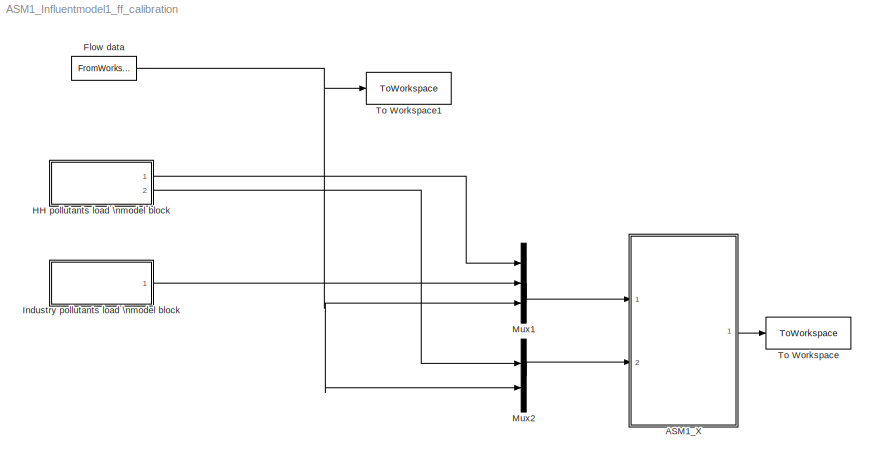
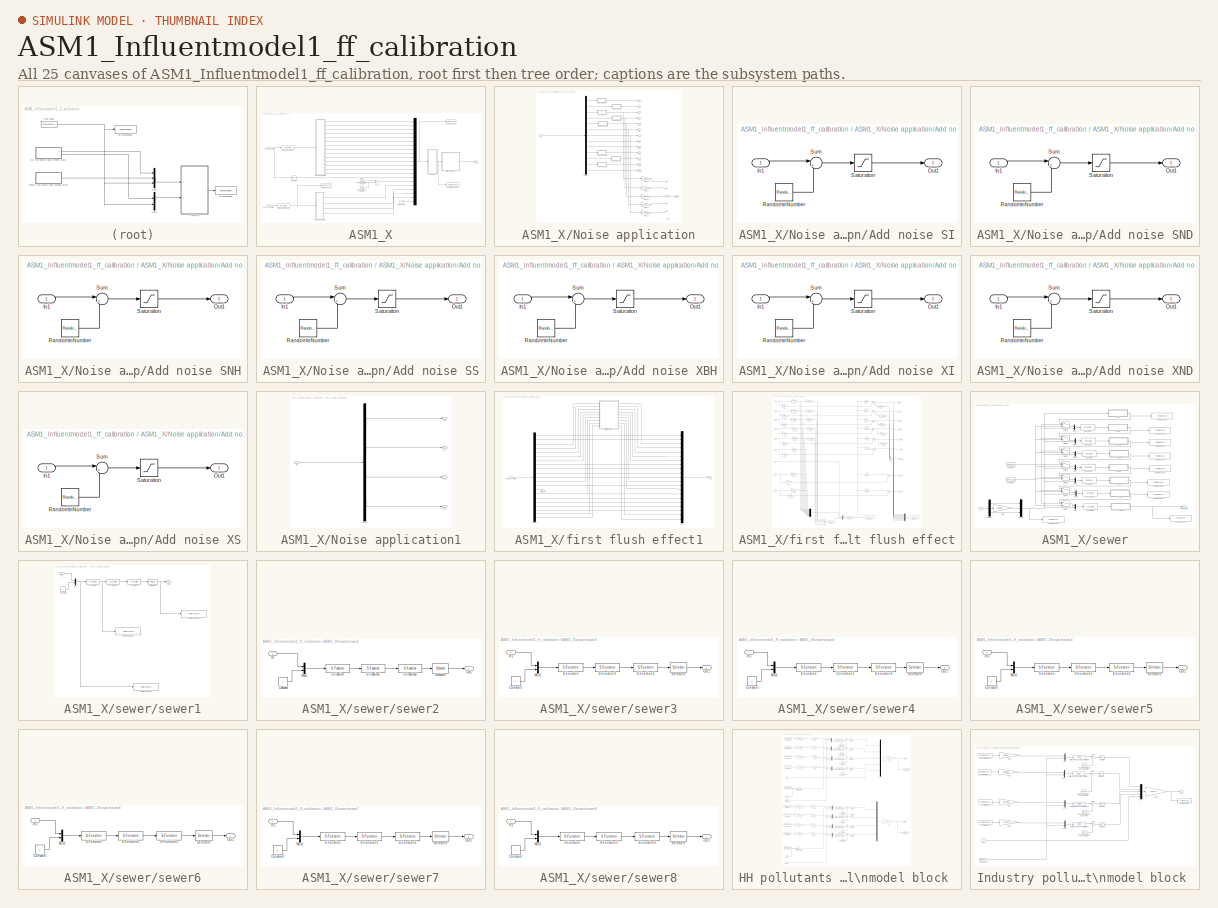
[diagram: thumbnail index - all 25 canvases of the model, root first then tree order]
MODEL ASM1_Influentmodel1_ff_calibration
KIND model
BLOCK [SubSystem] ASM1_X
  FunctionWithSeparateData = off
  MaskHideContents = off
  MinAlgLoopOccurrences = off
  Opaque = off
  Ports = [2, 1]
  PropExecContextOutsideSubsystem = off
  RTWSystemCode = Auto
  RequestExecContextInheritance = off
  SID = 1
BLOCK [S-Function] ASM1_X/ASM1_fractionator
  EnableBusSupport = off
  FunctionName = asm1_fractionation
  Parameters = ASM1_PARS, ASM1_FRACTIONS
  Ports = [1, 1]
  SID = 3
BLOCK [S-Function] ASM1_X/BSM1_fractionator1
  EnableBusSupport = off
  FunctionName = asmX_fractionation
  Ports = [1, 1]
  SID = 447
BLOCK [Mux] ASM1_X/Mux2
  DisplayOption = bar
  Inputs = 21
  Ports = [21, 1]
  SID = 4
BLOCK [SubSystem] ASM1_X/Noise application
  FunctionWithSeparateData = off
  MaskHideContents = off
  MinAlgLoopOccurrences = off
  Opaque = off
  Ports = [1, 14]
  PropExecContextOutsideSubsystem = off
  RTWSystemCode = Auto
  RequestExecContextInheritance = off
  SID = 553
BLOCK [SubSystem] ASM1_X/Noise application/Add noise SI
  FunctionWithSeparateData = off
  MaskHideContents = off
  MinAlgLoopOccurrences = off
  Opaque = off
  Ports = [1, 1]
  PropExecContextOutsideSubsystem = off
  RTWSystemCode = Auto
  RequestExecContextInheritance = off
  SID = 555
BLOCK [Inport] ASM1_X/Noise application/Add noise SI/In1
  IconDisplay = Port number
  SID = 556
BLOCK [Outport] ASM1_X/Noise application/Add noise SI/Out1
  IconDisplay = Port number
  SID = 560
BLOCK [RandomNumber] ASM1_X/Noise application/Add noise SI/Random\nNumber
  SID = 557
  SampleTime = SI_st
  Seed = SI_ns
  Variance = SI_nv*polnoiseswitch
BLOCK [Saturate] ASM1_X/Noise application/Add noise SI/Saturation
  InputPortMap = u0
  LowerLimit = SI_min
  Ports = [1, 1]
  SID = 558
  UpperLimit = SI_max
BLOCK [Sum] ASM1_X/Noise application/Add noise SI/Sum
  IconShape = round
  InputSameDT = off
  Inputs = |++
  OutDataTypeStr = Inherit: Inherit via internal rule
  Ports = [2, 1]
  SID = 559
BLOCK [SubSystem] ASM1_X/Noise application/Add noise SND
  FunctionWithSeparateData = off
  MaskHideContents = off
  MinAlgLoopOccurrences = off
  Opaque = off
  Ports = [1, 1]
  PropExecContextOutsideSubsystem = off
  RTWSystemCode = Auto
  RequestExecContextInheritance = off
  SID = 561
BLOCK [Inport] ASM1_X/Noise application/Add noise SND/In1
  IconDisplay = Port number
  SID = 562
BLOCK [Outport] ASM1_X/Noise application/Add noise SND/Out1
  IconDisplay = Port number
  SID = 566
BLOCK [RandomNumber] ASM1_X/Noise application/Add noise SND/Random\nNumber
  SID = 563
  SampleTime = SND_st
  Seed = SND_ns
  Variance = SND_nv*polnoiseswitch
BLOCK [Saturate] ASM1_X/Noise application/Add noise SND/Saturation
  InputPortMap = u0
  LowerLimit = SND_min
  Ports = [1, 1]
  SID = 564
  UpperLimit = SND_max
BLOCK [Sum] ASM1_X/Noise application/Add noise SND/Sum
  IconShape = round
  InputSameDT = off
  Inputs = |++
  OutDataTypeStr = Inherit: Inherit via internal rule
  Ports = [2, 1]
  SID = 565
BLOCK [SubSystem] ASM1_X/Noise application/Add noise SNH
  FunctionWithSeparateData = off
  MaskHideContents = off
  MinAlgLoopOccurrences = off
  Opaque = off
  Ports = [1, 1]
  PropExecContextOutsideSubsystem = off
  RTWSystemCode = Auto
  RequestExecContextInheritance = off
  SID = 567
BLOCK [Inport] ASM1_X/Noise application/Add noise SNH/In1
  IconDisplay = Port number
  SID = 568
BLOCK [Outport] ASM1_X/Noise application/Add noise SNH/Out1
  IconDisplay = Port number
  SID = 572
BLOCK [RandomNumber] ASM1_X/Noise application/Add noise SNH/Random\nNumber
  SID = 569
  SampleTime = SNH_st
  Seed = SNH_ns
  Variance = SNH_nv*polnoiseswitch
BLOCK [Saturate] ASM1_X/Noise application/Add noise SNH/Saturation
  InputPortMap = u0
  LowerLimit = SNH_min
  Ports = [1, 1]
  SID = 570
  UpperLimit = SNH_max
BLOCK [Sum] ASM1_X/Noise application/Add noise SNH/Sum
  IconShape = round
  InputSameDT = off
  Inputs = |++
  OutDataTypeStr = Inherit: Inherit via internal rule
  Ports = [2, 1]
  SID = 571
BLOCK [SubSystem] ASM1_X/Noise application/Add noise SS
  FunctionWithSeparateData = off
  MaskHideContents = off
  MinAlgLoopOccurrences = off
  Opaque = off
  Ports = [1, 1]
  PropExecContextOutsideSubsystem = off
  RTWSystemCode = Auto
  RequestExecContextInheritance = off
  SID = 573
BLOCK [Inport] ASM1_X/Noise application/Add noise SS/In1
  IconDisplay = Port number
  SID = 574
BLOCK [Outport] ASM1_X/Noise application/Add noise SS/Out1
  IconDisplay = Port number
  SID = 578
BLOCK [RandomNumber] ASM1_X/Noise application/Add noise SS/Random\nNumber
  SID = 575
  SampleTime = SS_st
  Seed = SS_ns
  Variance = SS_nv*polnoiseswitch
BLOCK [Saturate] ASM1_X/Noise application/Add noise SS/Saturation
  InputPortMap = u0
  LowerLimit = SS_min
  Ports = [1, 1]
  SID = 576
  UpperLimit = SS_max
BLOCK [Sum] ASM1_X/Noise application/Add noise SS/Sum
  IconShape = round
  InputSameDT = off
  Inputs = |++
  OutDataTypeStr = Inherit: Inherit via internal rule
  Ports = [2, 1]
  SID = 577
BLOCK [SubSystem] ASM1_X/Noise application/Add noise XBH
  FunctionWithSeparateData = off
  MaskHideContents = off
  MinAlgLoopOccurrences = off
  Opaque = off
  Ports = [1, 1]
  PropExecContextOutsideSubsystem = off
  RTWSystemCode = Auto
  RequestExecContextInheritance = off
  SID = 579
BLOCK [Inport] ASM1_X/Noise application/Add noise XBH/In1
  IconDisplay = Port number
  SID = 580
BLOCK [Outport] ASM1_X/Noise application/Add noise XBH/Out1
  IconDisplay = Port number
  SID = 584
BLOCK [RandomNumber] ASM1_X/Noise application/Add noise XBH/Random\nNumber
  SID = 581
  SampleTime = XBH_st
  Seed = XBH_ns
  Variance = XBH_nv*polnoiseswitch
BLOCK [Saturate] ASM1_X/Noise application/Add noise XBH/Saturation
  InputPortMap = u0
  LowerLimit = XBH_min
  Ports = [1, 1]
  SID = 582
  UpperLimit = XBH_max
BLOCK [Sum] ASM1_X/Noise application/Add noise XBH/Sum
  IconShape = round
  InputSameDT = off
  Inputs = |++
  OutDataTypeStr = Inherit: Inherit via internal rule
  Ports = [2, 1]
  SID = 583
BLOCK [SubSystem] ASM1_X/Noise application/Add noise XI
  FunctionWithSeparateData = off
  MaskHideContents = off
  MinAlgLoopOccurrences = off
  Opaque = off
  Ports = [1, 1]
  PropExecContextOutsideSubsystem = off
  RTWSystemCode = Auto
  RequestExecContextInheritance = off
  SID = 585
BLOCK [Inport] ASM1_X/Noise application/Add noise XI/In1
  IconDisplay = Port number
  SID = 586
BLOCK [Outport] ASM1_X/Noise application/Add noise XI/Out1
  IconDisplay = Port number
  SID = 590
BLOCK [RandomNumber] ASM1_X/Noise application/Add noise XI/Random\nNumber
  SID = 587
  SampleTime = XI_st
  Seed = XI_ns
  Variance = XI_nv*polnoiseswitch
BLOCK [Saturate] ASM1_X/Noise application/Add noise XI/Saturation
  InputPortMap = u0
  LowerLimit = XI_min
  Ports = [1, 1]
  SID = 588
  UpperLimit = XI_max
BLOCK [Sum] ASM1_X/Noise application/Add noise XI/Sum
  IconShape = round
  InputSameDT = off
  Inputs = |++
  OutDataTypeStr = Inherit: Inherit via internal rule
  Ports = [2, 1]
  SID = 589
BLOCK [SubSystem] ASM1_X/Noise application/Add noise XND
  FunctionWithSeparateData = off
  MaskHideContents = off
  MinAlgLoopOccurrences = off
  Opaque = off
  Ports = [1, 1]
  PropExecContextOutsideSubsystem = off
  RTWSystemCode = Auto
  RequestExecContextInheritance = off
  SID = 591
BLOCK [Inport] ASM1_X/Noise application/Add noise XND/In1
  IconDisplay = Port number
  SID = 592
BLOCK [Outport] ASM1_X/Noise application/Add noise XND/Out1
  IconDisplay = Port number
  SID = 596
BLOCK [RandomNumber] ASM1_X/Noise application/Add noise XND/Random\nNumber
  SID = 593
  SampleTime = XND_st
  Seed = XND_ns
  Variance = XND_nv*polnoiseswitch
BLOCK [Saturate] ASM1_X/Noise application/Add noise XND/Saturation
  InputPortMap = u0
  LowerLimit = XND_min
  Ports = [1, 1]
  SID = 594
  UpperLimit = XND_max
BLOCK [Sum] ASM1_X/Noise application/Add noise XND/Sum
  IconShape = round
  InputSameDT = off
  Inputs = |++
  OutDataTypeStr = Inherit: Inherit via internal rule
  Ports = [2, 1]
  SID = 595
BLOCK [SubSystem] ASM1_X/Noise application/Add noise XS
  FunctionWithSeparateData = off
  MaskHideContents = off
  MinAlgLoopOccurrences = off
  Opaque = off
  Ports = [1, 1]
  PropExecContextOutsideSubsystem = off
  RTWSystemCode = Auto
  RequestExecContextInheritance = off
  SID = 597
BLOCK [Inport] ASM1_X/Noise application/Add noise XS/In1
  IconDisplay = Port number
  SID = 598
BLOCK [Outport] ASM1_X/Noise application/Add noise XS/Out1
  IconDisplay = Port number
  SID = 602
BLOCK [RandomNumber] ASM1_X/Noise application/Add noise XS/Random\nNumber
  SID = 599
  SampleTime = XS_st
  Seed = XS_ns
  Variance = XS_nv*polnoiseswitch
BLOCK [Saturate] ASM1_X/Noise application/Add noise XS/Saturation
  InputPortMap = u0
  LowerLimit = XS_min
  Ports = [1, 1]
  SID = 600
  UpperLimit = XS_max
BLOCK [Sum] ASM1_X/Noise application/Add noise XS/Sum
  IconShape = round
  InputSameDT = off
  Inputs = |++
  OutDataTypeStr = Inherit: Inherit via internal rule
  Ports = [2, 1]
  SID = 601
BLOCK [Demux] ASM1_X/Noise application/Demux
  DisplayOption = bar
  Outputs = [1 1 1 1 1 1 1 1 1 1 1 1 1]
  Ports = [1, 13]
  SID = 603
BLOCK [Gain] ASM1_X/Noise application/Gain18
  Gain = X_I2TSS
  OutDataTypeStr = Inherit: Inherit via internal rule
  ParamDataTypeStr = Inherit: Inherit via internal rule
  SID = 604
  SaturateOnIntegerOverflow = off
BLOCK [Gain] ASM1_X/Noise application/Gain19
  Gain = X_S2TSS
  OutDataTypeStr = Inherit: Inherit via internal rule
  ParamDataTypeStr = Inherit: Inherit via internal rule
  SID = 605
  SaturateOnIntegerOverflow = off
BLOCK [Gain] ASM1_X/Noise application/Gain20
  Gain = X_BH2TSS
  OutDataTypeStr = Inherit: Inherit via internal rule
  ParamDataTypeStr = Inherit: Inherit via internal rule
  SID = 606
  SaturateOnIntegerOverflow = off
BLOCK [Gain] ASM1_X/Noise application/Gain21
  Gain = X_BA2TSS
  OutDataTypeStr = Inherit: Inherit via internal rule
  ParamDataTypeStr = Inherit: Inherit via internal rule
  SID = 607
  SaturateOnIntegerOverflow = off
BLOCK [Gain] ASM1_X/Noise application/Gain22
  Gain = X_P2TSS
  OutDataTypeStr = Inherit: Inherit via internal rule
  ParamDataTypeStr = Inherit: Inherit via internal rule
  SID = 608
  SaturateOnIntegerOverflow = off
BLOCK [Inport] ASM1_X/Noise application/In1
  IconDisplay = Port number
  SID = 554
BLOCK [Outport] ASM1_X/Noise application/SALK
  IconDisplay = Port number
  Port = 13
  SID = 622
BLOCK [Outport] ASM1_X/Noise application/SI
  IconDisplay = Port number
  SID = 610
BLOCK [Outport] ASM1_X/Noise application/SND
  IconDisplay = Port number
  Port = 11
  SID = 620
BLOCK [Outport] ASM1_X/Noise application/SNH
  IconDisplay = Port number
  Port = 10
  SID = 619
BLOCK [Outport] ASM1_X/Noise application/SNO
  IconDisplay = Port number
  Port = 9
  SID = 618
BLOCK [Outport] ASM1_X/Noise application/SO
  IconDisplay = Port number
  Port = 8
  SID = 617
BLOCK [Outport] ASM1_X/Noise application/SS
  IconDisplay = Port number
  Port = 2
  SID = 611
BLOCK [Outport] ASM1_X/Noise application/TSS
  IconDisplay = Port number
  Port = 14
  SID = 623
BLOCK [Sum] ASM1_X/Noise application/TSS7
  InputSameDT = off
  Inputs = +++++
  OutDataTypeStr = Inherit: Inherit via internal rule
  Ports = [5, 1]
  SID = 609
  SaturateOnIntegerOverflow = off
BLOCK [Outport] ASM1_X/Noise application/XBA
  IconDisplay = Port number
  Port = 6
  SID = 615
BLOCK [Outport] ASM1_X/Noise application/XBH
  IconDisplay = Port number
  Port = 5
  SID = 614
BLOCK [Outport] ASM1_X/Noise application/XI
  IconDisplay = Port number
  Port = 3
  SID = 612
BLOCK [Outport] ASM1_X/Noise application/XND
  IconDisplay = Port number
  Port = 12
  SID = 621
BLOCK [Outport] ASM1_X/Noise application/XS
  IconDisplay = Port number
  Port = 4
  SID = 613
BLOCK [Outport] ASM1_X/Noise application/XU
  IconDisplay = Port number
  Port = 7
  SID = 616
BLOCK [SubSystem] ASM1_X/Noise application1
  FunctionWithSeparateData = off
  MaskHideContents = off
  MinAlgLoopOccurrences = off
  Opaque = off
  Ports = [1, 4]
  PropExecContextOutsideSubsystem = off
  RTWSystemCode = Auto
  RequestExecContextInheritance = off
  SID = 448
BLOCK [Outport] ASM1_X/Noise application1/C_cj
  IconDisplay = Port number
  Port = 2
  SID = 500
BLOCK [Outport] ASM1_X/Noise application1/C_li
  IconDisplay = Port number
  SID = 499
BLOCK [Outport] ASM1_X/Noise application1/C_sl
  IconDisplay = Port number
  Port = 3
  SID = 501
BLOCK [Outport] ASM1_X/Noise application1/C_sl_i
  IconDisplay = Port number
  Port = 4
  SID = 502
BLOCK [Demux] ASM1_X/Noise application1/Demux
  DisplayOption = bar
  Outputs = [1 1 1 1]
  Ports = [1, 4]
  SID = 498
BLOCK [Inport] ASM1_X/Noise application1/In1
  IconDisplay = Port number
  SID = 449
BLOCK [Sum] ASM1_X/TSS10
  InputSameDT = off
  OutDataTypeStr = Inherit: Inherit via internal rule
  Ports = [2, 1]
  SID = 69
  SaturateOnIntegerOverflow = off
BLOCK [ToWorkspace] ASM1_X/To Workspace
  MaxDataPoints = inf
  Ports = [1]
  SID = 70
  SampleTime = -1
  VariableName = simout_ASM
BLOCK [ToWorkspace] ASM1_X/To Workspace1
  MaxDataPoints = inf
  Ports = [1]
  SID = 541
  SampleTime = -1
  VariableName = simout_ASM2
BLOCK [ToWorkspace] ASM1_X/To Workspace3
  MaxDataPoints = inf
  Ports = [1]
  SID = 701
  SampleTime = -1
  VariableName = simout_ASM_stream
BLOCK [Outport] ASM1_X/_out
  IconDisplay = Port number
  SID = 238
BLOCK [Sin] ASM1_X/daily variation\n module
  Amplitude = TdAmp
  Bias = TdBias
  Frequency = TdFreq
  Phase = TdPhase
  Ports = [0, 1]
  SID = 71
  SampleTime = 0
BLOCK [Constant] ASM1_X/dummy state 
  SID = 512
  Value = 0
BLOCK [SubSystem] ASM1_X/first flush effect1
  FunctionWithSeparateData = off
  MaskHideContents = off
  MinAlgLoopOccurrences = off
  Opaque = off
  Ports = [1, 1]
  PropExecContextOutsideSubsystem = off
  RTWSystemCode = Auto
  RequestExecContextInheritance = off
  SID = 625
BLOCK [Demux] ASM1_X/first flush effect1/Demux
  DisplayOption = bar
  Outputs = [1 1 1 1 1 1 1 1 1 1 1 1 1 1 1 1 1 1 1 1 1]
  Ports = [1, 21]
  SID = 627
BLOCK [Mux] ASM1_X/first flush effect1/Mux2
  DisplayOption = bar
  Inputs = 21
  Ports = [21, 1]
  SID = 628
BLOCK [Terminator] ASM1_X/first flush effect1/Terminator
  SID = 629
BLOCK [Outport] ASM1_X/first flush effect1/_out
  IconDisplay = Port number
  SID = 700
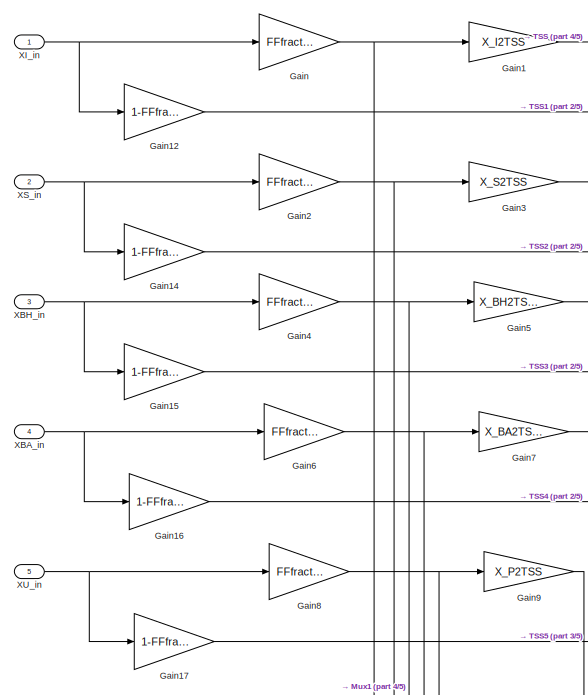
[diagram: ASM1_X/first flush effect1/first flush effect - part 1/5, top left region]
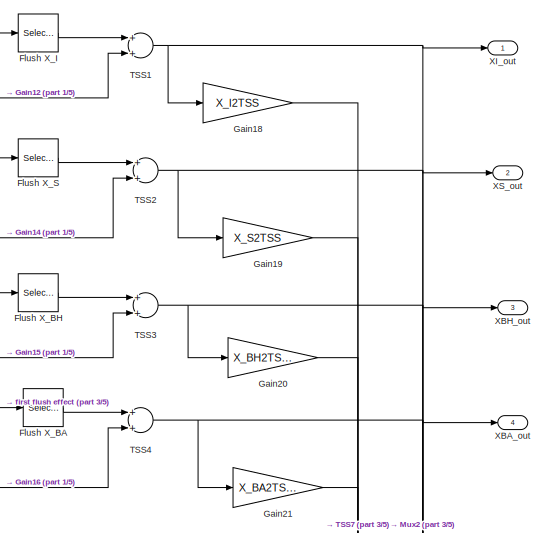
[diagram: ASM1_X/first flush effect1/first flush effect - part 2/5, top right region]
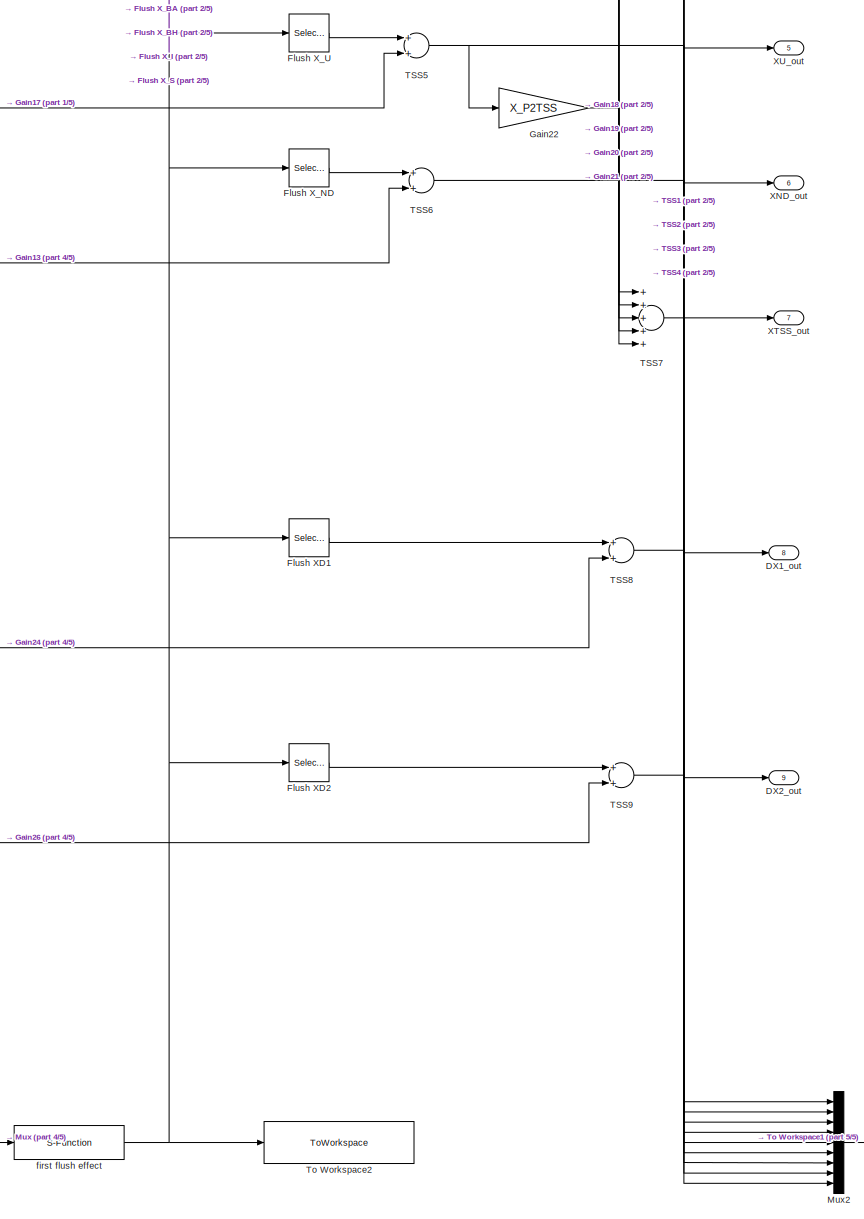
[diagram: ASM1_X/first flush effect1/first flush effect - part 3/5, middle right region]
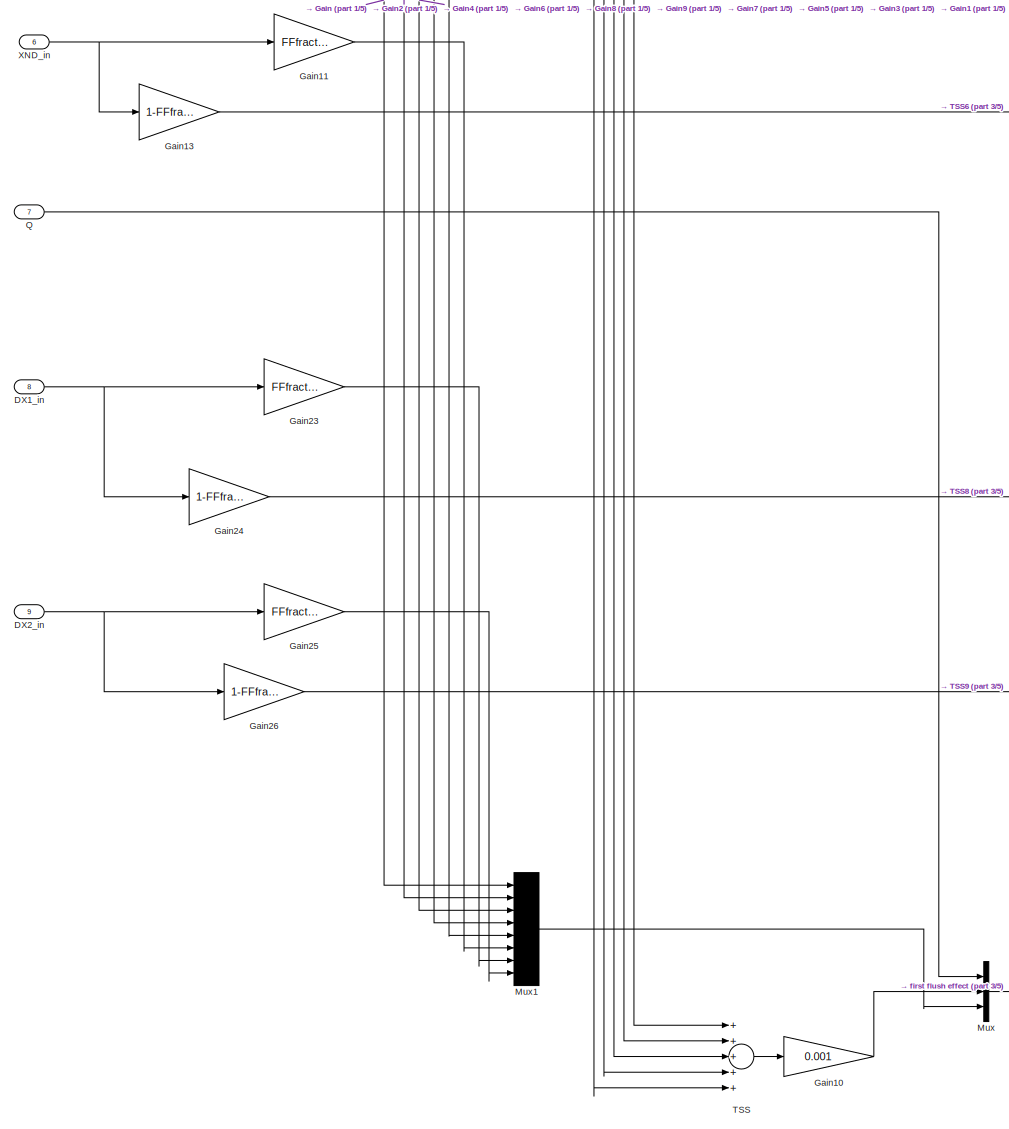
[diagram: ASM1_X/first flush effect1/first flush effect - part 4/5, bottom left region]
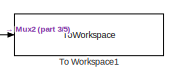
[diagram: ASM1_X/first flush effect1/first flush effect - part 5/5, bottom right region]
BLOCK [SubSystem] ASM1_X/first flush effect1/first flush effect
  FunctionWithSeparateData = off
  MaskHideContents = off
  MinAlgLoopOccurrences = off
  Opaque = off
  Ports = [9, 9]
  PropExecContextOutsideSubsystem = off
  RTWSystemCode = Auto
  RequestExecContextInheritance = off
  SID = 630
BLOCK [Inport] ASM1_X/first flush effect1/first flush effect/DX1_in
  IconDisplay = Port number
  Port = 8
  SID = 638
BLOCK [Outport] ASM1_X/first flush effect1/first flush effect/DX1_out
  IconDisplay = Port number
  Port = 8
  SID = 698
BLOCK [Inport] ASM1_X/first flush effect1/first flush effect/DX2_in
  IconDisplay = Port number
  Port = 9
  SID = 639
BLOCK [Outport] ASM1_X/first flush effect1/first flush effect/DX2_out
  IconDisplay = Port number
  Port = 9
  SID = 699
BLOCK [Selector] ASM1_X/first flush effect1/first flush effect/Flush XD1
  IndexOptions = Index vector (dialog)
  Indices = [9]
  InputPortWidth = 19
  OutputSizes = 1
  Ports = [1, 1]
  SID = 640
BLOCK [Selector] ASM1_X/first flush effect1/first flush effect/Flush XD2
  IndexOptions = Index vector (dialog)
  Indices = [10]
  InputPortWidth = 19
  OutputSizes = 1
  Ports = [1, 1]
  SID = 641
BLOCK [Selector] ASM1_X/first flush effect1/first flush effect/Flush X_BA
  IndexOptions = Index vector (dialog)
  Indices = [6]
  InputPortWidth = 19
  OutputSizes = 1
  Ports = [1, 1]
  SID = 642
BLOCK [Selector] ASM1_X/first flush effect1/first flush effect/Flush X_BH
  IndexOptions = Index vector (dialog)
  Indices = [5]
  InputPortWidth = 19
  OutputSizes = 1
  Ports = [1, 1]
  SID = 643
BLOCK [Selector] ASM1_X/first flush effect1/first flush effect/Flush X_I
  IndexOptions = Index vector (dialog)
  Indices = [3]
  InputPortWidth = 19
  OutputSizes = 1
  Ports = [1, 1]
  SID = 644
BLOCK [Selector] ASM1_X/first flush effect1/first flush effect/Flush X_ND
  IndexOptions = Index vector (dialog)
  Indices = [8]
  InputPortWidth = 19
  OutputSizes = 1
  Ports = [1, 1]
  SID = 645
BLOCK [Selector] ASM1_X/first flush effect1/first flush effect/Flush X_S
  IndexOptions = Index vector (dialog)
  Indices = [4]
  InputPortWidth = 19
  OutputSizes = 1
  Ports = [1, 1]
  SID = 646
BLOCK [Selector] ASM1_X/first flush effect1/first flush effect/Flush X_U
  IndexOptions = Index vector (dialog)
  Indices = [7]
  InputPortWidth = 19
  OutputSizes = 1
  Ports = [1, 1]
  SID = 647
BLOCK [Gain] ASM1_X/first flush effect1/first flush effect/Gain
  Gain = FFfraction
  OutDataTypeStr = Inherit: Inherit via internal rule
  ParamDataTypeStr = Inherit: Inherit via internal rule
  SID = 648
  SaturateOnIntegerOverflow = off
BLOCK [Gain] ASM1_X/first flush effect1/first flush effect/Gain1
  Gain = X_I2TSS
  OutDataTypeStr = Inherit: Inherit via internal rule
  ParamDataTypeStr = Inherit: Inherit via internal rule
  SID = 649
  SaturateOnIntegerOverflow = off
BLOCK [Gain] ASM1_X/first flush effect1/first flush effect/Gain10
  Gain = 0.001
  OutDataTypeStr = Inherit: Inherit via internal rule
  ParamDataTypeStr = Inherit: Inherit via internal rule
  SID = 650
  SaturateOnIntegerOverflow = off
BLOCK [Gain] ASM1_X/first flush effect1/first flush effect/Gain11
  Gain = FFfraction
  OutDataTypeStr = Inherit: Inherit via internal rule
  ParamDataTypeStr = Inherit: Inherit via internal rule
  SID = 651
  SaturateOnIntegerOverflow = off
BLOCK [Gain] ASM1_X/first flush effect1/first flush effect/Gain12
  Gain = 1-FFfraction
  OutDataTypeStr = Inherit: Inherit via internal rule
  ParamDataTypeStr = Inherit: Inherit via internal rule
  SID = 652
  SaturateOnIntegerOverflow = off
BLOCK [Gain] ASM1_X/first flush effect1/first flush effect/Gain13
  Gain = 1-FFfraction
  OutDataTypeStr = Inherit: Inherit via internal rule
  ParamDataTypeStr = Inherit: Inherit via internal rule
  SID = 653
  SaturateOnIntegerOverflow = off
BLOCK [Gain] ASM1_X/first flush effect1/first flush effect/Gain14
  Gain = 1-FFfraction
  OutDataTypeStr = Inherit: Inherit via internal rule
  ParamDataTypeStr = Inherit: Inherit via internal rule
  SID = 654
  SaturateOnIntegerOverflow = off
BLOCK [Gain] ASM1_X/first flush effect1/first flush effect/Gain15
  Gain = 1-FFfraction
  OutDataTypeStr = Inherit: Inherit via internal rule
  ParamDataTypeStr = Inherit: Inherit via internal rule
  SID = 655
  SaturateOnIntegerOverflow = off
BLOCK [Gain] ASM1_X/first flush effect1/first flush effect/Gain16
  Gain = 1-FFfraction
  OutDataTypeStr = Inherit: Inherit via internal rule
  ParamDataTypeStr = Inherit: Inherit via internal rule
  SID = 656
  SaturateOnIntegerOverflow = off
BLOCK [Gain] ASM1_X/first flush effect1/first flush effect/Gain17
  Gain = 1-FFfraction
  OutDataTypeStr = Inherit: Inherit via internal rule
  ParamDataTypeStr = Inherit: Inherit via internal rule
  SID = 657
  SaturateOnIntegerOverflow = off
BLOCK [Gain] ASM1_X/first flush effect1/first flush effect/Gain18
  Gain = X_I2TSS
  OutDataTypeStr = Inherit: Inherit via internal rule
  ParamDataTypeStr = Inherit: Inherit via internal rule
  SID = 658
  SaturateOnIntegerOverflow = off
BLOCK [Gain] ASM1_X/first flush effect1/first flush effect/Gain19
  Gain = X_S2TSS
  OutDataTypeStr = Inherit: Inherit via internal rule
  ParamDataTypeStr = Inherit: Inherit via internal rule
  SID = 659
  SaturateOnIntegerOverflow = off
BLOCK [Gain] ASM1_X/first flush effect1/first flush effect/Gain2
  Gain = FFfraction
  OutDataTypeStr = Inherit: Inherit via internal rule
  ParamDataTypeStr = Inherit: Inherit via internal rule
  SID = 660
  SaturateOnIntegerOverflow = off
BLOCK [Gain] ASM1_X/first flush effect1/first flush effect/Gain20
  Gain = X_BH2TSS
  OutDataTypeStr = Inherit: Inherit via internal rule
  ParamDataTypeStr = Inherit: Inherit via internal rule
  SID = 661
  SaturateOnIntegerOverflow = off
BLOCK [Gain] ASM1_X/first flush effect1/first flush effect/Gain21
  Gain = X_BA2TSS
  OutDataTypeStr = Inherit: Inherit via internal rule
  ParamDataTypeStr = Inherit: Inherit via internal rule
  SID = 662
  SaturateOnIntegerOverflow = off
BLOCK [Gain] ASM1_X/first flush effect1/first flush effect/Gain22
  Gain = X_P2TSS
  OutDataTypeStr = Inherit: Inherit via internal rule
  ParamDataTypeStr = Inherit: Inherit via internal rule
  SID = 663
  SaturateOnIntegerOverflow = off
BLOCK [Gain] ASM1_X/first flush effect1/first flush effect/Gain23
  Gain = FFfraction
  OutDataTypeStr = Inherit: Inherit via internal rule
  ParamDataTypeStr = Inherit: Inherit via internal rule
  SID = 664
  SaturateOnIntegerOverflow = off
BLOCK [Gain] ASM1_X/first flush effect1/first flush effect/Gain24
  Gain = 1-FFfraction
  OutDataTypeStr = Inherit: Inherit via internal rule
  ParamDataTypeStr = Inherit: Inherit via internal rule
  SID = 665
  SaturateOnIntegerOverflow = off
BLOCK [Gain] ASM1_X/first flush effect1/first flush effect/Gain25
  Gain = FFfraction
  OutDataTypeStr = Inherit: Inherit via internal rule
  ParamDataTypeStr = Inherit: Inherit via internal rule
  SID = 666
  SaturateOnIntegerOverflow = off
BLOCK [Gain] ASM1_X/first flush effect1/first flush effect/Gain26
  Gain = 1-FFfraction
  OutDataTypeStr = Inherit: Inherit via internal rule
  ParamDataTypeStr = Inherit: Inherit via internal rule
  SID = 667
  SaturateOnIntegerOverflow = off
BLOCK [Gain] ASM1_X/first flush effect1/first flush effect/Gain3
  Gain = X_S2TSS
  OutDataTypeStr = Inherit: Inherit via internal rule
  ParamDataTypeStr = Inherit: Inherit via internal rule
  SID = 668
  SaturateOnIntegerOverflow = off
BLOCK [Gain] ASM1_X/first flush effect1/first flush effect/Gain4
  Gain = FFfraction
  OutDataTypeStr = Inherit: Inherit via internal rule
  ParamDataTypeStr = Inherit: Inherit via internal rule
  SID = 669
  SaturateOnIntegerOverflow = off
BLOCK [Gain] ASM1_X/first flush effect1/first flush effect/Gain5
  Gain = X_BH2TSS
  OutDataTypeStr = Inherit: Inherit via internal rule
  ParamDataTypeStr = Inherit: Inherit via internal rule
  SID = 670
  SaturateOnIntegerOverflow = off
BLOCK [Gain] ASM1_X/first flush effect1/first flush effect/Gain6
  Gain = FFfraction
  OutDataTypeStr = Inherit: Inherit via internal rule
  ParamDataTypeStr = Inherit: Inherit via internal rule
  SID = 671
  SaturateOnIntegerOverflow = off
BLOCK [Gain] ASM1_X/first flush effect1/first flush effect/Gain7
  Gain = X_BA2TSS
  OutDataTypeStr = Inherit: Inherit via internal rule
  ParamDataTypeStr = Inherit: Inherit via internal rule
  SID = 672
  SaturateOnIntegerOverflow = off
BLOCK [Gain] ASM1_X/first flush effect1/first flush effect/Gain8
  Gain = FFfraction
  OutDataTypeStr = Inherit: Inherit via internal rule
  ParamDataTypeStr = Inherit: Inherit via internal rule
  SID = 673
  SaturateOnIntegerOverflow = off
BLOCK [Gain] ASM1_X/first flush effect1/first flush effect/Gain9
  Gain = X_P2TSS
  OutDataTypeStr = Inherit: Inherit via internal rule
  ParamDataTypeStr = Inherit: Inherit via internal rule
  SID = 674
  SaturateOnIntegerOverflow = off
BLOCK [Mux] ASM1_X/first flush effect1/first flush effect/Mux
  DisplayOption = bar
  Inputs = 3
  Ports = [3, 1]
  SID = 675
BLOCK [Mux] ASM1_X/first flush effect1/first flush effect/Mux1
  DisplayOption = bar
  Inputs = 8
  Ports = [8, 1]
  SID = 676
BLOCK [Mux] ASM1_X/first flush effect1/first flush effect/Mux2
  DisplayOption = bar
  Inputs = 9
  Ports = [9, 1]
  SID = 677
BLOCK [Inport] ASM1_X/first flush effect1/first flush effect/Q
  IconDisplay = Port number
  Port = 7
  SID = 637
BLOCK [Sum] ASM1_X/first flush effect1/first flush effect/TSS
  InputSameDT = off
  Inputs = +++++
  OutDataTypeStr = Inherit: Inherit via internal rule
  Ports = [5, 1]
  SID = 678
  SaturateOnIntegerOverflow = off
BLOCK [Sum] ASM1_X/first flush effect1/first flush effect/TSS1
  InputSameDT = off
  OutDataTypeStr = Inherit: Inherit via internal rule
  Ports = [2, 1]
  SID = 679
  SaturateOnIntegerOverflow = off
BLOCK [Sum] ASM1_X/first flush effect1/first flush effect/TSS2
  InputSameDT = off
  OutDataTypeStr = Inherit: Inherit via internal rule
  Ports = [2, 1]
  SID = 680
  SaturateOnIntegerOverflow = off
BLOCK [Sum] ASM1_X/first flush effect1/first flush effect/TSS3
  InputSameDT = off
  OutDataTypeStr = Inherit: Inherit via internal rule
  Ports = [2, 1]
  SID = 681
  SaturateOnIntegerOverflow = off
BLOCK [Sum] ASM1_X/first flush effect1/first flush effect/TSS4
  InputSameDT = off
  OutDataTypeStr = Inherit: Inherit via internal rule
  Ports = [2, 1]
  SID = 682
  SaturateOnIntegerOverflow = off
BLOCK [Sum] ASM1_X/first flush effect1/first flush effect/TSS5
  InputSameDT = off
  OutDataTypeStr = Inherit: Inherit via internal rule
  Ports = [2, 1]
  SID = 683
  SaturateOnIntegerOverflow = off
BLOCK [Sum] ASM1_X/first flush effect1/first flush effect/TSS6
  InputSameDT = off
  OutDataTypeStr = Inherit: Inherit via internal rule
  Ports = [2, 1]
  SID = 684
  SaturateOnIntegerOverflow = off
BLOCK [Sum] ASM1_X/first flush effect1/first flush effect/TSS7
  InputSameDT = off
  Inputs = +++++
  OutDataTypeStr = Inherit: Inherit via internal rule
  Ports = [5, 1]
  SID = 685
  SaturateOnIntegerOverflow = off
BLOCK [Sum] ASM1_X/first flush effect1/first flush effect/TSS8
  InputSameDT = off
  OutDataTypeStr = Inherit: Inherit via internal rule
  Ports = [2, 1]
  SID = 686
  SaturateOnIntegerOverflow = off
BLOCK [Sum] ASM1_X/first flush effect1/first flush effect/TSS9
  InputSameDT = off
  OutDataTypeStr = Inherit: Inherit via internal rule
  Ports = [2, 1]
  SID = 687
  SaturateOnIntegerOverflow = off
BLOCK [ToWorkspace] ASM1_X/first flush effect1/first flush effect/To Workspace1
  MaxDataPoints = inf
  Ports = [1]
  SID = 688
  SampleTime = -1
  VariableName = firstflush_effectASM1
BLOCK [ToWorkspace] ASM1_X/first flush effect1/first flush effect/To Workspace2
  MaxDataPoints = inf
  Ports = [1]
  SID = 689
  SampleTime = -1
  VariableName = firstflush_effectASM_total
BLOCK [Inport] ASM1_X/first flush effect1/first flush effect/XBA_in
  IconDisplay = Port number
  Port = 4
  SID = 634
BLOCK [Outport] ASM1_X/first flush effect1/first flush effect/XBA_out
  IconDisplay = Port number
  Port = 4
  SID = 694
BLOCK [Inport] ASM1_X/first flush effect1/first flush effect/XBH_in
  IconDisplay = Port number
  Port = 3
  SID = 633
BLOCK [Outport] ASM1_X/first flush effect1/first flush effect/XBH_out
  IconDisplay = Port number
  Port = 3
  SID = 693
BLOCK [Inport] ASM1_X/first flush effect1/first flush effect/XI_in
  IconDisplay = Port number
  SID = 631
BLOCK [Outport] ASM1_X/first flush effect1/first flush effect/XI_out
  IconDisplay = Port number
  SID = 691
BLOCK [Inport] ASM1_X/first flush effect1/first flush effect/XND_in
  IconDisplay = Port number
  Port = 6
  SID = 636
BLOCK [Outport] ASM1_X/first flush effect1/first flush effect/XND_out
  IconDisplay = Port number
  Port = 6
  SID = 696
BLOCK [Inport] ASM1_X/first flush effect1/first flush effect/XS_in
  IconDisplay = Port number
  Port = 2
  SID = 632
BLOCK [Outport] ASM1_X/first flush effect1/first flush effect/XS_out
  IconDisplay = Port number
  Port = 2
  SID = 692
BLOCK [Outport] ASM1_X/first flush effect1/first flush effect/XTSS_out
  IconDisplay = Port number
  Port = 7
  SID = 697
BLOCK [Inport] ASM1_X/first flush effect1/first flush effect/XU_in
  IconDisplay = Port number
  Port = 5
  SID = 635
BLOCK [Outport] ASM1_X/first flush effect1/first flush effect/XU_out
  IconDisplay = Port number
  Port = 5
  SID = 695
BLOCK [S-Function] ASM1_X/first flush effect1/first flush effect/first flush effect
  EnableBusSupport = off
  FunctionName = firstflush_ASM1
  Parameters = ASM1_XINIT, SSPARS
  Ports = [1, 1]
  SID = 690
BLOCK [Inport] ASM1_X/first flush effect1/yearly_indS profile
  IconDisplay = Port number
  SID = 626
BLOCK [Selector] ASM1_X/influent flow
  IndexOptions = Index vector (dialog)
  Indices = [11]
  InputPortWidth = 11
  OutputSizes = 1
  Ports = [1, 1]
  SID = 134
BLOCK [Sin] ASM1_X/seasonal variation\n module
  Amplitude = TAmp
  Bias = TBias
  Frequency = TFreq
  Phase = TPhase
  Ports = [0, 1]
  SID = 135
  SampleTime = 0
BLOCK [SubSystem] ASM1_X/sewer
  FunctionWithSeparateData = off
  MaskHideContents = off
  MinAlgLoopOccurrences = off
  Opaque = off
  Ports = [1, 1]
  PropExecContextOutsideSubsystem = off
  RTWSystemCode = Auto
  RequestExecContextInheritance = off
  SID = 136
BLOCK [Demux] ASM1_X/sewer/Demux1
  Outputs = [14 1 6]
  Ports = [1, 3]
  SID = 138
BLOCK [Gain] ASM1_X/sewer/Gain
  Gain = 1/subarea
  OutDataTypeStr = Inherit: Inherit via internal rule
  ParamDataTypeStr = Inherit: Inherit via internal rule
  SID = 139
  SaturateOnIntegerOverflow = off
BLOCK [Inport] ASM1_X/sewer/In1
  IconDisplay = Port number
  SID = 137
BLOCK [Mux] ASM1_X/sewer/Mux1
  DisplayOption = bar
  Inputs = 2
  Ports = [2, 1]
  SID = 140
BLOCK [Mux] ASM1_X/sewer/Mux10
  DisplayOption = bar
  Inputs = 3
  Ports = [3, 1]
  SID = 141
BLOCK [Mux] ASM1_X/sewer/Mux2
  DisplayOption = bar
  Inputs = 2
  Ports = [2, 1]
  SID = 142
BLOCK [Mux] ASM1_X/sewer/Mux3
  DisplayOption = bar
  Inputs = 2
  Ports = [2, 1]
  SID = 143
BLOCK [Mux] ASM1_X/sewer/Mux4
  DisplayOption = bar
  Inputs = 2
  Ports = [2, 1]
  SID = 144
BLOCK [Mux] ASM1_X/sewer/Mux5
  DisplayOption = bar
  Inputs = 2
  Ports = [2, 1]
  SID = 145
BLOCK [Mux] ASM1_X/sewer/Mux6
  DisplayOption = bar
  Inputs = 2
  Ports = [2, 1]
  SID = 146
BLOCK [Mux] ASM1_X/sewer/Mux7
  DisplayOption = bar
  Inputs = 2
  Ports = [2, 1]
  SID = 147
BLOCK [S-Function] ASM1_X/sewer/S-Function
  EnableBusSupport = off
  FunctionName = asm1_combiner
  Ports = [1, 1]
  SID = 148
BLOCK [S-Function] ASM1_X/sewer/S-Function1
  EnableBusSupport = off
  FunctionName = asm1_combiner
  Ports = [1, 1]
  SID = 149
BLOCK [S-Function] ASM1_X/sewer/S-Function2
  EnableBusSupport = off
  FunctionName = asm1_combiner
  Ports = [1, 1]
  SID = 150
BLOCK [S-Function] ASM1_X/sewer/S-Function3
  EnableBusSupport = off
  FunctionName = asm1_combiner
  Ports = [1, 1]
  SID = 151
BLOCK [S-Function] ASM1_X/sewer/S-Function4
  EnableBusSupport = off
  FunctionName = asm1_combiner
  Ports = [1, 1]
  SID = 152
BLOCK [S-Function] ASM1_X/sewer/S-Function5
  EnableBusSupport = off
  FunctionName = asm1_combiner
  Ports = [1, 1]
  SID = 153
BLOCK [S-Function] ASM1_X/sewer/S-Function6
  EnableBusSupport = off
  FunctionName = asm1_combiner
  Ports = [1, 1]
  SID = 154
BLOCK [Switch] ASM1_X/sewer/Switch1
  InputSameDT = off
  SID = 155
  Threshold = 3
BLOCK [Switch] ASM1_X/sewer/Switch2
  InputSameDT = off
  SID = 156
  Threshold = 4
BLOCK [Switch] ASM1_X/sewer/Switch3
  InputSameDT = off
  SID = 157
  Threshold = 5
BLOCK [Switch] ASM1_X/sewer/Switch4
  InputSameDT = off
  SID = 158
  Threshold = 6
BLOCK [Switch] ASM1_X/sewer/Switch5
  InputSameDT = off
  SID = 159
  Threshold = 7
BLOCK [Switch] ASM1_X/sewer/Switch6
  InputSameDT = off
  SID = 160
  Threshold = 8
BLOCK [Switch] ASM1_X/sewer/Switch7
  InputSameDT = off
  SID = 161
  Threshold = 3
BLOCK [ToWorkspace] ASM1_X/sewer/To Workspace1
  MaxDataPoints = inf
  Ports = [1]
  SID = 162
  SampleTime = -1
  VariableName = sewer_ASM1
BLOCK [ToWorkspace] ASM1_X/sewer/To Workspace2
  MaxDataPoints = inf
  Ports = [1]
  SID = 537
  SampleTime = -1
  VariableName = sewer_ASM
BLOCK [ToWorkspace] ASM1_X/sewer/To Workspace3
  MaxDataPoints = inf
  Ports = [1]
  SID = 543
  SampleTime = -1
  VariableName = sewer_ASM5
BLOCK [ToWorkspace] ASM1_X/sewer/To Workspace4
  MaxDataPoints = inf
  Ports = [1]
  SID = 544
  SampleTime = -1
  VariableName = sewer_ASM6
BLOCK [ToWorkspace] ASM1_X/sewer/To Workspace5
  MaxDataPoints = inf
  Ports = [1]
  SID = 545
  SampleTime = -1
  VariableName = sewer_ASM7
BLOCK [ToWorkspace] ASM1_X/sewer/To Workspace6
  MaxDataPoints = inf
  Ports = [1]
  SID = 546
  SampleTime = -1
  VariableName = sewer_ASM8
BLOCK [ToWorkspace] ASM1_X/sewer/To Workspace7
  MaxDataPoints = inf
  Ports = [1]
  SID = 547
  SampleTime = -1
  VariableName = sewer_ASM9
BLOCK [ToWorkspace] ASM1_X/sewer/To Workspace8
  MaxDataPoints = inf
  Ports = [1]
  SID = 548
  SampleTime = -1
  VariableName = sewer_ASM10
BLOCK [ToWorkspace] ASM1_X/sewer/To Workspace9
  MaxDataPoints = inf
  Ports = [1]
  SID = 549
  SampleTime = -1
  VariableName = sewer_ASM11
BLOCK [Outport] ASM1_X/sewer/output sewer
  IconDisplay = Port number
  SID = 237
BLOCK [SubSystem] ASM1_X/sewer/sewer1
  FunctionWithSeparateData = off
  MaskHideContents = off
  MinAlgLoopOccurrences = off
  Opaque = off
  Ports = [1, 1]
  PropExecContextOutsideSubsystem = off
  RTWSystemCode = Auto
  RequestExecContextInheritance = off
  SID = 163
BLOCK [Constant] ASM1_X/sewer/sewer1/Constant
  SID = 165
BLOCK [Inport] ASM1_X/sewer/sewer1/In1
  IconDisplay = Port number
  SID = 164
BLOCK [Mux] ASM1_X/sewer/sewer1/Mux1
  DisplayOption = bar
  Inputs = 2
  Ports = [2, 1]
  SID = 166
BLOCK [Outport] ASM1_X/sewer/sewer1/Out1
  IconDisplay = Port number
  SID = 171
BLOCK [S-Function] ASM1_X/sewer/sewer1/S-Function
  EnableBusSupport = off
  FunctionName = sewer_asm1
  Parameters = ASM1_SEWERINIT, ASM1_PARS, SPAR, SOSAT, ASMX, KLa
  Ports = [1, 1]
  SID = 167
BLOCK [S-Function] ASM1_X/sewer/sewer1/S-Function1
  EnableBusSupport = off
  FunctionName = sewer_asm1
  Parameters = ASM1_SEWERINIT, ASM1_PARS, SPAR, SOSAT, ASMX, KLa
  Ports = [1, 1]
  SID = 168
BLOCK [S-Function] ASM1_X/sewer/sewer1/S-Function2
  EnableBusSupport = off
  FunctionName = sewer_asm1
  Parameters = ASM1_SEWERINIT, ASM1_PARS, SPAR, SOSAT, ASMX, KLa
  Ports = [1, 1]
  SID = 169
BLOCK [Selector] ASM1_X/sewer/sewer1/Selector9
  IndexOptions = Index vector (dialog)
  Indices = [1 2 3 4 5 6 7 8 9 10 11 12 13 14 15 16 17 18 19 20 21]
  InputPortWidth = 22
  OutputSizes = 1
  Ports = [1, 1]
  SID = 170
BLOCK [ToWorkspace] ASM1_X/sewer/sewer1/To Workspace1
  MaxDataPoints = inf
  Ports = [1]
  SID = 539
  SampleTime = -1
  VariableName = sewer_ASM3
BLOCK [ToWorkspace] ASM1_X/sewer/sewer1/To Workspace2
  MaxDataPoints = inf
  Ports = [1]
  SID = 538
  SampleTime = -1
  VariableName = sewer_ASM2
BLOCK [ToWorkspace] ASM1_X/sewer/sewer1/To Workspace3
  MaxDataPoints = inf
  Ports = [1]
  SID = 542
  SampleTime = -1
  VariableName = sewer_ASM4
BLOCK [SubSystem] ASM1_X/sewer/sewer2
  FunctionWithSeparateData = off
  MaskHideContents = off
  MinAlgLoopOccurrences = off
  Opaque = off
  Ports = [1, 1]
  PropExecContextOutsideSubsystem = off
  RTWSystemCode = Auto
  RequestExecContextInheritance = off
  SID = 172
BLOCK [Constant] ASM1_X/sewer/sewer2/Constant
  SID = 174
BLOCK [Inport] ASM1_X/sewer/sewer2/In1
  IconDisplay = Port number
  SID = 173
BLOCK [Mux] ASM1_X/sewer/sewer2/Mux1
  DisplayOption = bar
  Inputs = 2
  Ports = [2, 1]
  SID = 175
BLOCK [Outport] ASM1_X/sewer/sewer2/Out1
  IconDisplay = Port number
  SID = 180
BLOCK [S-Function] ASM1_X/sewer/sewer2/S-Function
  EnableBusSupport = off
  FunctionName = sewer_asm1
  Parameters = ASM1_SEWERINIT, ASM1_PARS, SPAR, SOSAT, ASMX, KLa
  Ports = [1, 1]
  SID = 513
BLOCK [S-Function] ASM1_X/sewer/sewer2/S-Function1
  EnableBusSupport = off
  FunctionName = sewer_asm1
  Parameters = ASM1_SEWERINIT, ASM1_PARS, SPAR, SOSAT, ASMX, KLa
  Ports = [1, 1]
  SID = 514
BLOCK [S-Function] ASM1_X/sewer/sewer2/S-Function2
  EnableBusSupport = off
  FunctionName = sewer_asm1
  Parameters = ASM1_SEWERINIT, ASM1_PARS, SPAR, SOSAT, ASMX, KLa
  Ports = [1, 1]
  SID = 515
BLOCK [Selector] ASM1_X/sewer/sewer2/Selector9
  IndexOptions = Index vector (dialog)
  Indices = [1 2 3 4 5 6 7 8 9 10 11 12 13 14 15 16 17 18 19 20 21]
  InputPortWidth = 22
  OutputSizes = 1
  Ports = [1, 1]
  SID = 179
BLOCK [SubSystem] ASM1_X/sewer/sewer3
  FunctionWithSeparateData = off
  MaskHideContents = off
  MinAlgLoopOccurrences = off
  Opaque = off
  Ports = [1, 1]
  PropExecContextOutsideSubsystem = off
  RTWSystemCode = Auto
  RequestExecContextInheritance = off
  SID = 181
BLOCK [Constant] ASM1_X/sewer/sewer3/Constant
  SID = 183
BLOCK [Inport] ASM1_X/sewer/sewer3/In1
  IconDisplay = Port number
  SID = 182
BLOCK [Mux] ASM1_X/sewer/sewer3/Mux1
  DisplayOption = bar
  Inputs = 2
  Ports = [2, 1]
  SID = 184
BLOCK [Outport] ASM1_X/sewer/sewer3/Out1
  IconDisplay = Port number
  SID = 189
BLOCK [S-Function] ASM1_X/sewer/sewer3/S-Function
  EnableBusSupport = off
  FunctionName = sewer_asm1
  Parameters = ASM1_SEWERINIT, ASM1_PARS, SPAR, SOSAT, ASMX, KLa
  Ports = [1, 1]
  SID = 519
BLOCK [S-Function] ASM1_X/sewer/sewer3/S-Function1
  EnableBusSupport = off
  FunctionName = sewer_asm1
  Parameters = ASM1_SEWERINIT, ASM1_PARS, SPAR, SOSAT, ASMX, KLa
  Ports = [1, 1]
  SID = 520
BLOCK [S-Function] ASM1_X/sewer/sewer3/S-Function2
  EnableBusSupport = off
  FunctionName = sewer_asm1
  Parameters = ASM1_SEWERINIT, ASM1_PARS, SPAR, SOSAT, ASMX, KLa
  Ports = [1, 1]
  SID = 521
BLOCK [Selector] ASM1_X/sewer/sewer3/Selector9
  IndexOptions = Index vector (dialog)
  Indices = [1 2 3 4 5 6 7 8 9 10 11 12 13 14 15 16 17 18 19 20 21]
  InputPortWidth = 22
  OutputSizes = 1
  Ports = [1, 1]
  SID = 188
BLOCK [SubSystem] ASM1_X/sewer/sewer4
  FunctionWithSeparateData = off
  MaskHideContents = off
  MinAlgLoopOccurrences = off
  Opaque = off
  Ports = [1, 1]
  PropExecContextOutsideSubsystem = off
  RTWSystemCode = Auto
  RequestExecContextInheritance = off
  SID = 190
BLOCK [Constant] ASM1_X/sewer/sewer4/Constant
  SID = 192
BLOCK [Inport] ASM1_X/sewer/sewer4/In1
  IconDisplay = Port number
  SID = 191
BLOCK [Mux] ASM1_X/sewer/sewer4/Mux1
  DisplayOption = bar
  Inputs = 2
  Ports = [2, 1]
  SID = 193
BLOCK [Outport] ASM1_X/sewer/sewer4/Out1
  IconDisplay = Port number
  SID = 198
BLOCK [S-Function] ASM1_X/sewer/sewer4/S-Function
  EnableBusSupport = off
  FunctionName = sewer_asm1
  Parameters = ASM1_SEWERINIT, ASM1_PARS, SPAR, SOSAT, ASMX, KLa
  Ports = [1, 1]
  SID = 522
BLOCK [S-Function] ASM1_X/sewer/sewer4/S-Function1
  EnableBusSupport = off
  FunctionName = sewer_asm1
  Parameters = ASM1_SEWERINIT, ASM1_PARS, SPAR, SOSAT, ASMX, KLa
  Ports = [1, 1]
  SID = 523
BLOCK [S-Function] ASM1_X/sewer/sewer4/S-Function2
  EnableBusSupport = off
  FunctionName = sewer_asm1
  Parameters = ASM1_SEWERINIT, ASM1_PARS, SPAR, SOSAT, ASMX, KLa
  Ports = [1, 1]
  SID = 524
BLOCK [Selector] ASM1_X/sewer/sewer4/Selector9
  IndexOptions = Index vector (dialog)
  Indices = [1 2 3 4 5 6 7 8 9 10 11 12 13 14 15 16 17 18 19 20 21]
  InputPortWidth = 22
  OutputSizes = 1
  Ports = [1, 1]
  SID = 197
BLOCK [SubSystem] ASM1_X/sewer/sewer5
  FunctionWithSeparateData = off
  MaskHideContents = off
  MinAlgLoopOccurrences = off
  Opaque = off
  Ports = [1, 1]
  PropExecContextOutsideSubsystem = off
  RTWSystemCode = Auto
  RequestExecContextInheritance = off
  SID = 199
BLOCK [Constant] ASM1_X/sewer/sewer5/Constant
  SID = 201
BLOCK [Inport] ASM1_X/sewer/sewer5/In1
  IconDisplay = Port number
  SID = 200
BLOCK [Mux] ASM1_X/sewer/sewer5/Mux1
  DisplayOption = bar
  Inputs = 2
  Ports = [2, 1]
  SID = 202
BLOCK [Outport] ASM1_X/sewer/sewer5/Out1
  IconDisplay = Port number
  SID = 207
BLOCK [S-Function] ASM1_X/sewer/sewer5/S-Function
  EnableBusSupport = off
  FunctionName = sewer_asm1
  Parameters = ASM1_SEWERINIT, ASM1_PARS, SPAR, SOSAT, ASMX, KLa
  Ports = [1, 1]
  SID = 525
BLOCK [S-Function] ASM1_X/sewer/sewer5/S-Function1
  EnableBusSupport = off
  FunctionName = sewer_asm1
  Parameters = ASM1_SEWERINIT, ASM1_PARS, SPAR, SOSAT, ASMX, KLa
  Ports = [1, 1]
  SID = 526
BLOCK [S-Function] ASM1_X/sewer/sewer5/S-Function2
  EnableBusSupport = off
  FunctionName = sewer_asm1
  Parameters = ASM1_SEWERINIT, ASM1_PARS, SPAR, SOSAT, ASMX, KLa
  Ports = [1, 1]
  SID = 527
BLOCK [Selector] ASM1_X/sewer/sewer5/Selector9
  IndexOptions = Index vector (dialog)
  Indices = [1 2 3 4 5 6 7 8 9 10 11 12 13 14 15 16 17 18 19 20 21]
  InputPortWidth = 22
  OutputSizes = 1
  Ports = [1, 1]
  SID = 206
BLOCK [SubSystem] ASM1_X/sewer/sewer6
  FunctionWithSeparateData = off
  MaskHideContents = off
  MinAlgLoopOccurrences = off
  Opaque = off
  Ports = [1, 1]
  PropExecContextOutsideSubsystem = off
  RTWSystemCode = Auto
  RequestExecContextInheritance = off
  SID = 208
BLOCK [Constant] ASM1_X/sewer/sewer6/Constant
  SID = 210
BLOCK [Inport] ASM1_X/sewer/sewer6/In1
  IconDisplay = Port number
  SID = 209
BLOCK [Mux] ASM1_X/sewer/sewer6/Mux1
  DisplayOption = bar
  Inputs = 2
  Ports = [2, 1]
  SID = 211
BLOCK [Outport] ASM1_X/sewer/sewer6/Out1
  IconDisplay = Port number
  SID = 216
BLOCK [S-Function] ASM1_X/sewer/sewer6/S-Function
  EnableBusSupport = off
  FunctionName = sewer_asm1
  Parameters = ASM1_SEWERINIT, ASM1_PARS, SPAR, SOSAT, ASMX, KLa
  Ports = [1, 1]
  SID = 528
BLOCK [S-Function] ASM1_X/sewer/sewer6/S-Function1
  EnableBusSupport = off
  FunctionName = sewer_asm1
  Parameters = ASM1_SEWERINIT, ASM1_PARS, SPAR, SOSAT, ASMX, KLa
  Ports = [1, 1]
  SID = 529
BLOCK [S-Function] ASM1_X/sewer/sewer6/S-Function2
  EnableBusSupport = off
  FunctionName = sewer_asm1
  Parameters = ASM1_SEWERINIT, ASM1_PARS, SPAR, SOSAT, ASMX, KLa
  Ports = [1, 1]
  SID = 530
BLOCK [Selector] ASM1_X/sewer/sewer6/Selector9
  IndexOptions = Index vector (dialog)
  Indices = [1 2 3 4 5 6 7 8 9 10 11 12 13 14 15 16 17 18 19 20 21]
  InputPortWidth = 22
  OutputSizes = 1
  Ports = [1, 1]
  SID = 215
BLOCK [SubSystem] ASM1_X/sewer/sewer7
  FunctionWithSeparateData = off
  MaskHideContents = off
  MinAlgLoopOccurrences = off
  Opaque = off
  Ports = [1, 1]
  PropExecContextOutsideSubsystem = off
  RTWSystemCode = Auto
  RequestExecContextInheritance = off
  SID = 217
BLOCK [Constant] ASM1_X/sewer/sewer7/Constant
  SID = 219
BLOCK [Inport] ASM1_X/sewer/sewer7/In1
  IconDisplay = Port number
  SID = 218
BLOCK [Mux] ASM1_X/sewer/sewer7/Mux1
  DisplayOption = bar
  Inputs = 2
  Ports = [2, 1]
  SID = 220
BLOCK [Outport] ASM1_X/sewer/sewer7/Out1
  IconDisplay = Port number
  SID = 225
BLOCK [S-Function] ASM1_X/sewer/sewer7/S-Function
  EnableBusSupport = off
  FunctionName = sewer_asm1
  Parameters = ASM1_SEWERINIT, ASM1_PARS, SPAR, SOSAT, ASMX, KLa
  Ports = [1, 1]
  SID = 531
BLOCK [S-Function] ASM1_X/sewer/sewer7/S-Function1
  EnableBusSupport = off
  FunctionName = sewer_asm1
  Parameters = ASM1_SEWERINIT, ASM1_PARS, SPAR, SOSAT, ASMX, KLa
  Ports = [1, 1]
  SID = 532
BLOCK [S-Function] ASM1_X/sewer/sewer7/S-Function2
  EnableBusSupport = off
  FunctionName = sewer_asm1
  Parameters = ASM1_SEWERINIT, ASM1_PARS, SPAR, SOSAT, ASMX, KLa
  Ports = [1, 1]
  SID = 533
BLOCK [Selector] ASM1_X/sewer/sewer7/Selector9
  IndexOptions = Index vector (dialog)
  Indices = [1 2 3 4 5 6 7 8 9 10 11 12 13 14 15 16 17 18 19 20 21]
  InputPortWidth = 22
  OutputSizes = 1
  Ports = [1, 1]
  SID = 224
BLOCK [SubSystem] ASM1_X/sewer/sewer8
  FunctionWithSeparateData = off
  MaskHideContents = off
  MinAlgLoopOccurrences = off
  Opaque = off
  Ports = [1, 1]
  PropExecContextOutsideSubsystem = off
  RTWSystemCode = Auto
  RequestExecContextInheritance = off
  SID = 226
BLOCK [Constant] ASM1_X/sewer/sewer8/Constant
  SID = 228
BLOCK [Inport] ASM1_X/sewer/sewer8/In1
  IconDisplay = Port number
  SID = 227
BLOCK [Mux] ASM1_X/sewer/sewer8/Mux1
  DisplayOption = bar
  Inputs = 2
  Ports = [2, 1]
  SID = 229
BLOCK [Outport] ASM1_X/sewer/sewer8/Out1
  IconDisplay = Port number
  SID = 234
BLOCK [S-Function] ASM1_X/sewer/sewer8/S-Function
  EnableBusSupport = off
  FunctionName = sewer_asm1
  Parameters = ASM1_SEWERINIT, ASM1_PARS, SPAR, SOSAT, ASMX, KLa
  Ports = [1, 1]
  SID = 534
BLOCK [S-Function] ASM1_X/sewer/sewer8/S-Function1
  EnableBusSupport = off
  FunctionName = sewer_asm1
  Parameters = ASM1_SEWERINIT, ASM1_PARS, SPAR, SOSAT, ASMX, KLa
  Ports = [1, 1]
  SID = 535
BLOCK [S-Function] ASM1_X/sewer/sewer8/S-Function2
  EnableBusSupport = off
  FunctionName = sewer_asm1
  Parameters = ASM1_SEWERINIT, ASM1_PARS, SPAR, SOSAT, ASMX, KLa
  Ports = [1, 1]
  SID = 536
BLOCK [Selector] ASM1_X/sewer/sewer8/Selector9
  IndexOptions = Index vector (dialog)
  Indices = [1 2 3 4 5 6 7 8 9 10 11 12 13 14 15 16 17 18 19 20 21 ]
  InputPortWidth = 22
  OutputSizes = 1
  Ports = [1, 1]
  SID = 233
BLOCK [Constant] ASM1_X/sewer/subarea
  SID = 235
  Value = subarea
BLOCK [Constant] ASM1_X/sewer/subarea1
  SID = 236
  Value = zeros (1,21)
BLOCK [Inport] ASM1_X/yearly_indS profile
  IconDisplay = Port number
  SID = 2
BLOCK [Inport] ASM1_X/yearly_indS profile1
  IconDisplay = Port number
  Port = 2
  SID = 390
BLOCK [FromWorkspace] Flow data
  SID = 311
  SampleTime = (1/24)
  VariableName = Flow
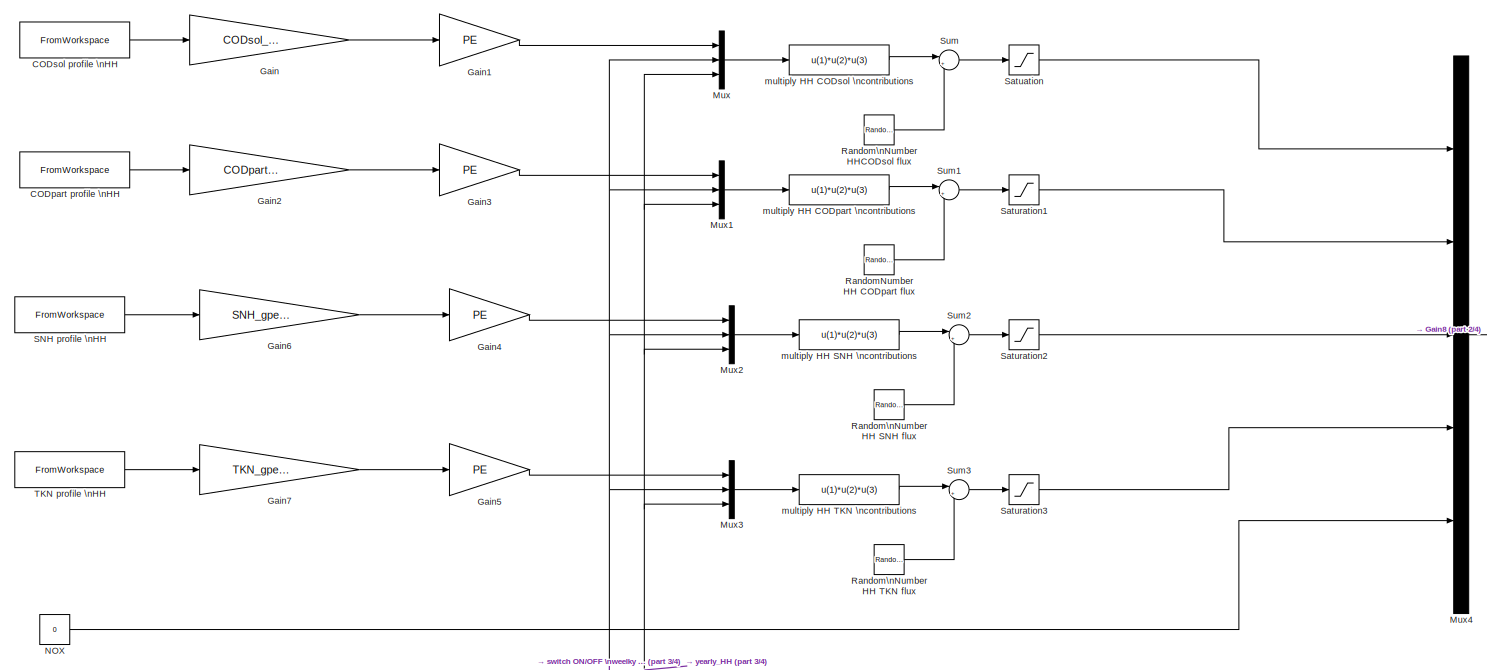
[diagram: HH pollutants load \nmodel block  - part 1/4, full width, top band]
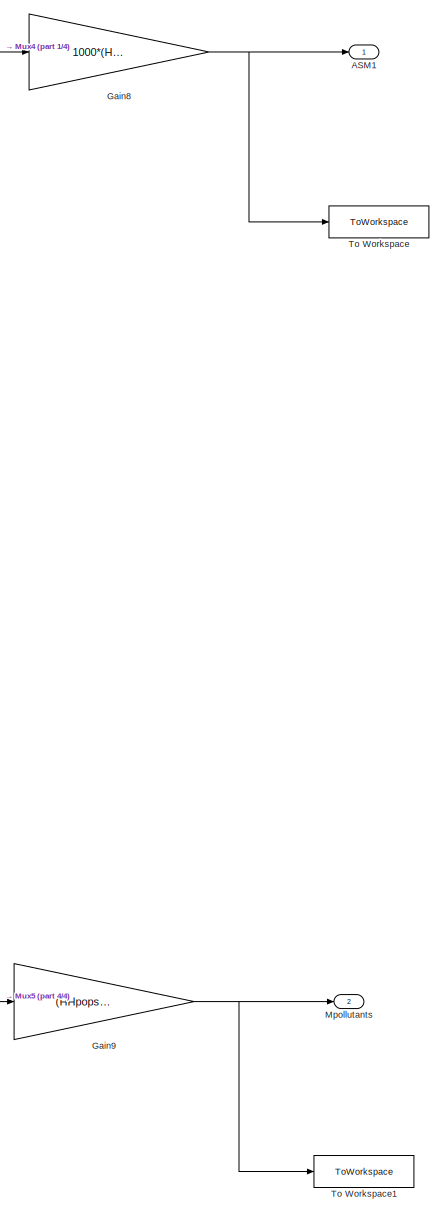
[diagram: HH pollutants load \nmodel block  - part 2/4, middle right region]
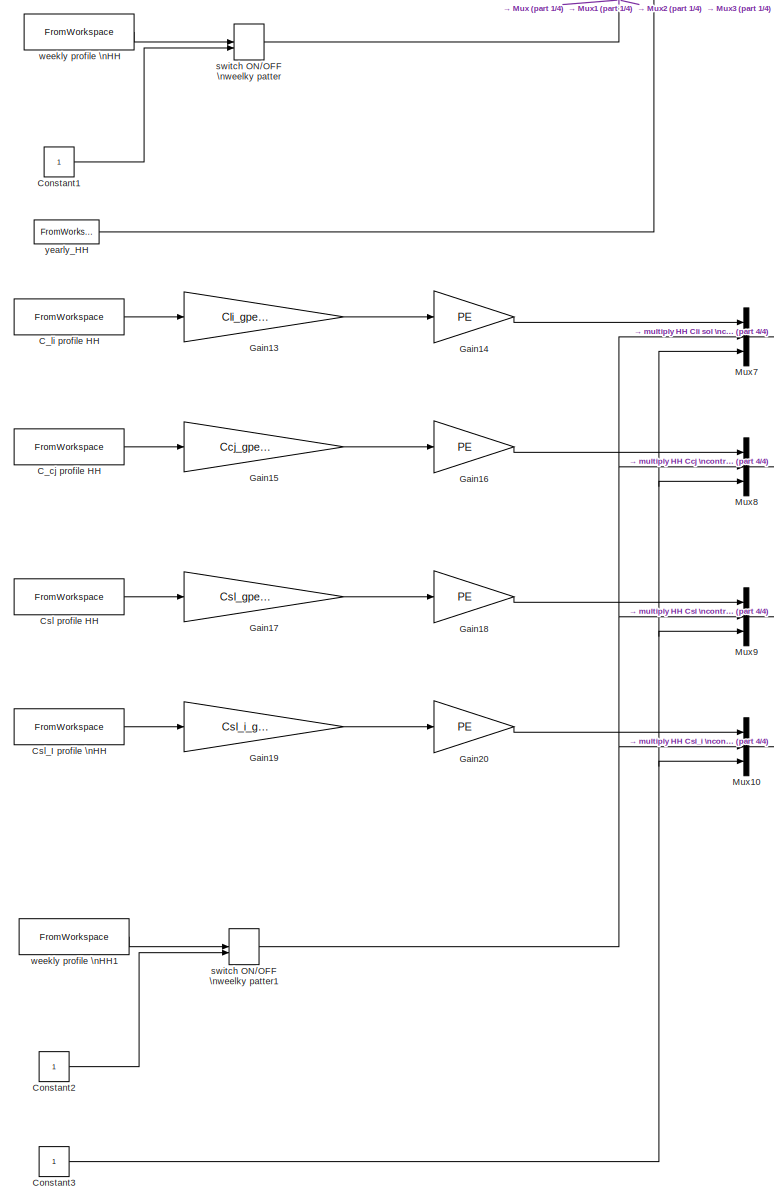
[diagram: HH pollutants load \nmodel block  - part 3/4, bottom left region]
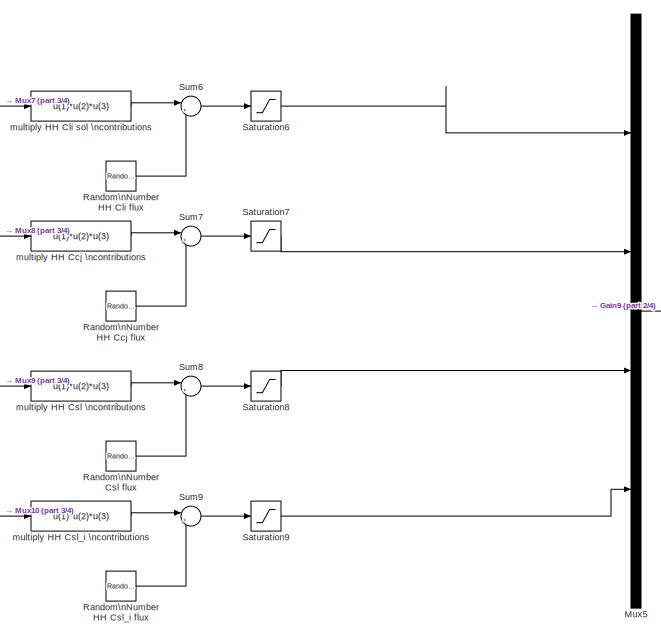
[diagram: HH pollutants load \nmodel block  - part 4/4, central region]
BLOCK [SubSystem] HH pollutants load \nmodel block 
  FunctionWithSeparateData = off
  MaskHideContents = off
  MinAlgLoopOccurrences = off
  Opaque = off
  Ports = [0, 2]
  PropExecContextOutsideSubsystem = off
  RTWSystemCode = Auto
  RequestExecContextInheritance = off
  SID = 257
BLOCK [Outport] HH pollutants load \nmodel block /ASM1
  IconDisplay = Port number
  SID = 298
BLOCK [FromWorkspace] HH pollutants load \nmodel block /CODpart profile \nHH
  Interpolate = off
  OutputAfterFinalValue = Cyclic repetition
  SID = 259
  SampleTime = 1/24
  VariableName = CODpart_day_HS
BLOCK [FromWorkspace] HH pollutants load \nmodel block /CODsol profile \nHH
  Interpolate = off
  OutputAfterFinalValue = Cyclic repetition
  SID = 260
  SampleTime = 1/24
  VariableName = CODsol_day_HS
BLOCK [FromWorkspace] HH pollutants load \nmodel block /C_cj profile HH
  Interpolate = off
  OutputAfterFinalValue = Cyclic repetition
  SID = 407
  SampleTime = 1/24
  VariableName = XXX_day_HS
BLOCK [FromWorkspace] HH pollutants load \nmodel block /C_li profile HH
  Interpolate = off
  OutputAfterFinalValue = Cyclic repetition
  SID = 408
  SampleTime = 1/24
  VariableName = XXX_day_HS
BLOCK [Constant] HH pollutants load \nmodel block /Constant1
  SID = 261
BLOCK [Constant] HH pollutants load \nmodel block /Constant2
  SID = 423
BLOCK [Constant] HH pollutants load \nmodel block /Constant3
  SID = 552
BLOCK [FromWorkspace] HH pollutants load \nmodel block /Csl profile HH
  Interpolate = off
  OutputAfterFinalValue = Cyclic repetition
  SID = 439
  SampleTime = 1/24
  VariableName = XXX_day_HS
BLOCK [FromWorkspace] HH pollutants load \nmodel block /Csl_I profile \nHH
  Interpolate = off
  OutputAfterFinalValue = Cyclic repetition
  SID = 426
  SampleTime = 1/24
  VariableName = XXX_day_HS
BLOCK [Gain] HH pollutants load \nmodel block /Gain
  Gain = CODsol_gperPEperd
  OutDataTypeStr = Inherit: Inherit via internal rule
  ParamDataTypeStr = Inherit: Inherit via internal rule
  SID = 262
  SaturateOnIntegerOverflow = off
BLOCK [Gain] HH pollutants load \nmodel block /Gain1
  Gain = PE
  OutDataTypeStr = Inherit: Inherit via internal rule
  ParamDataTypeStr = Inherit: Inherit via internal rule
  SID = 263
  SaturateOnIntegerOverflow = off
BLOCK [Gain] HH pollutants load \nmodel block /Gain13
  Gain = Cli_gperPEperd
  OutDataTypeStr = Inherit: Inherit via internal rule
  ParamDataTypeStr = Inherit: Inherit via internal rule
  SID = 409
  SaturateOnIntegerOverflow = off
BLOCK [Gain] HH pollutants load \nmodel block /Gain14
  Gain = PE
  OutDataTypeStr = Inherit: Inherit via internal rule
  ParamDataTypeStr = Inherit: Inherit via internal rule
  SID = 410
  SaturateOnIntegerOverflow = off
BLOCK [Gain] HH pollutants load \nmodel block /Gain15
  Gain = Ccj_gperPEperd
  OutDataTypeStr = Inherit: Inherit via internal rule
  ParamDataTypeStr = Inherit: Inherit via internal rule
  SID = 411
  SaturateOnIntegerOverflow = off
BLOCK [Gain] HH pollutants load \nmodel block /Gain16
  Gain = PE
  OutDataTypeStr = Inherit: Inherit via internal rule
  ParamDataTypeStr = Inherit: Inherit via internal rule
  SID = 412
  SaturateOnIntegerOverflow = off
BLOCK [Gain] HH pollutants load \nmodel block /Gain17
  Gain = Csl_gperPEperd
  OutDataTypeStr = Inherit: Inherit via internal rule
  ParamDataTypeStr = Inherit: Inherit via internal rule
  SID = 427
  SaturateOnIntegerOverflow = off
BLOCK [Gain] HH pollutants load \nmodel block /Gain18
  Gain = PE
  OutDataTypeStr = Inherit: Inherit via internal rule
  ParamDataTypeStr = Inherit: Inherit via internal rule
  SID = 428
  SaturateOnIntegerOverflow = off
BLOCK [Gain] HH pollutants load \nmodel block /Gain19
  Gain = Csl_i_gperPEperd
  OutDataTypeStr = Inherit: Inherit via internal rule
  ParamDataTypeStr = Inherit: Inherit via internal rule
  SID = 429
  SaturateOnIntegerOverflow = off
BLOCK [Gain] HH pollutants load \nmodel block /Gain2
  Gain = CODpart_gperPEperd
  OutDataTypeStr = Inherit: Inherit via internal rule
  ParamDataTypeStr = Inherit: Inherit via internal rule
  SID = 264
  SaturateOnIntegerOverflow = off
BLOCK [Gain] HH pollutants load \nmodel block /Gain20
  Gain = PE
  OutDataTypeStr = Inherit: Inherit via internal rule
  ParamDataTypeStr = Inherit: Inherit via internal rule
  SID = 430
  SaturateOnIntegerOverflow = off
BLOCK [Gain] HH pollutants load \nmodel block /Gain3
  Gain = PE
  OutDataTypeStr = Inherit: Inherit via internal rule
  ParamDataTypeStr = Inherit: Inherit via internal rule
  SID = 265
  SaturateOnIntegerOverflow = off
BLOCK [Gain] HH pollutants load \nmodel block /Gain4
  Gain = PE
  OutDataTypeStr = Inherit: Inherit via internal rule
  ParamDataTypeStr = Inherit: Inherit via internal rule
  SID = 266
  SaturateOnIntegerOverflow = off
BLOCK [Gain] HH pollutants load \nmodel block /Gain5
  Gain = PE
  OutDataTypeStr = Inherit: Inherit via internal rule
  ParamDataTypeStr = Inherit: Inherit via internal rule
  SID = 267
  SaturateOnIntegerOverflow = off
BLOCK [Gain] HH pollutants load \nmodel block /Gain6
  Gain = SNH_gperPEperd
  OutDataTypeStr = Inherit: Inherit via internal rule
  ParamDataTypeStr = Inherit: Inherit via internal rule
  SID = 268
  SaturateOnIntegerOverflow = off
BLOCK [Gain] HH pollutants load \nmodel block /Gain7
  Gain = TKN_gperPEperd
  OutDataTypeStr = Inherit: Inherit via internal rule
  ParamDataTypeStr = Inherit: Inherit via internal rule
  SID = 269
  SaturateOnIntegerOverflow = off
BLOCK [Gain] HH pollutants load \nmodel block /Gain8
  Gain = 1000*(HHpopswitch/100)
  OutDataTypeStr = Inherit: Inherit via internal rule
  ParamDataTypeStr = Inherit: Inherit via internal rule
  SID = 270
  SaturateOnIntegerOverflow = off
BLOCK [Gain] HH pollutants load \nmodel block /Gain9
  Gain = (HHpopswitch/100)
  OutDataTypeStr = Inherit: Inherit via internal rule
  ParamDataTypeStr = Inherit: Inherit via internal rule
  SID = 443
  SaturateOnIntegerOverflow = off
BLOCK [Outport] HH pollutants load \nmodel block /Mpollutants
  IconDisplay = Port number
  Port = 2
  SID = 445
BLOCK [Mux] HH pollutants load \nmodel block /Mux
  DisplayOption = bar
  Inputs = 3
  Ports = [3, 1]
  SID = 271
BLOCK [Mux] HH pollutants load \nmodel block /Mux1
  DisplayOption = bar
  Inputs = 3
  Ports = [3, 1]
  SID = 272
BLOCK [Mux] HH pollutants load \nmodel block /Mux10
  DisplayOption = bar
  Inputs = 3
  Ports = [3, 1]
  SID = 432
BLOCK [Mux] HH pollutants load \nmodel block /Mux2
  DisplayOption = bar
  Inputs = 3
  Ports = [3, 1]
  SID = 273
BLOCK [Mux] HH pollutants load \nmodel block /Mux3
  DisplayOption = bar
  Inputs = 3
  Ports = [3, 1]
  SID = 274
BLOCK [Mux] HH pollutants load \nmodel block /Mux4
  DisplayOption = bar
  Inputs = 5
  Ports = [5, 1]
  SID = 275
BLOCK [Mux] HH pollutants load \nmodel block /Mux5
  DisplayOption = bar
  Ports = [4, 1]
  SID = 442
BLOCK [Mux] HH pollutants load \nmodel block /Mux7
  DisplayOption = bar
  Inputs = 3
  Ports = [3, 1]
  SID = 413
BLOCK [Mux] HH pollutants load \nmodel block /Mux8
  DisplayOption = bar
  Inputs = 3
  Ports = [3, 1]
  SID = 414
BLOCK [Mux] HH pollutants load \nmodel block /Mux9
  DisplayOption = bar
  Inputs = 3
  Ports = [3, 1]
  SID = 431
BLOCK [Constant] HH pollutants load \nmodel block /NOX
  SID = 276
  Value = 0
BLOCK [RandomNumber] HH pollutants load \nmodel block /RandomNumber  HH CODpart flux
  SID = 277
  SampleTime = CODpart_HH_st
  Seed = CODpart_HH_ns
  Variance = CODpart_HH_nv*HHpolnoiseswitch
BLOCK [RandomNumber] HH pollutants load \nmodel block /Random\nNumber  Csl flux
  SID = 434
  SampleTime = Csl_HH_st
  Seed = Csl_HH_ns
  Variance = Csl_HH_nv*HHpolnoiseswitch
BLOCK [RandomNumber] HH pollutants load \nmodel block /Random\nNumber  HH Ccj flux
  SID = 415
  SampleTime = Ccj_HH_st
  Seed = Ccj_HH_ns
  Variance = Ccj_HH_nv*HHpolnoiseswitch
BLOCK [RandomNumber] HH pollutants load \nmodel block /Random\nNumber  HH Cli flux
  SID = 416
  SampleTime = Cli_HH_st
  Seed = Cli_HH_ns
  Variance = Cli_HH_nv*HHpolnoiseswitch
BLOCK [RandomNumber] HH pollutants load \nmodel block /Random\nNumber  HH Csl_i flux
  SID = 433
  SampleTime = Csl_i_HH_st
  Seed = Csl_i_HH_ns
  Variance = Csl_i_HH_nv*HHpolnoiseswitch
BLOCK [RandomNumber] HH pollutants load \nmodel block /Random\nNumber  HH SNH flux
  SID = 279
  SampleTime = SNH_HH_st
  Seed = SNH_HH_ns
  Variance = SNH_HH_nv*HHpolnoiseswitch
BLOCK [RandomNumber] HH pollutants load \nmodel block /Random\nNumber  HH TKN flux
  SID = 280
  SampleTime = TKN_HH_st
  Seed = TKN_HH_ns
  Variance = TKN_HH_nv*HHpolnoiseswitch
BLOCK [RandomNumber] HH pollutants load \nmodel block /Random\nNumber  HHCODsol flux
  SID = 278
  SampleTime = CODsol_HH_st
  Seed = CODsol_HH_ns
  Variance = CODsol_HH_nv*HHpolnoiseswitch
BLOCK [FromWorkspace] HH pollutants load \nmodel block /SNH  profile \nHH
  Interpolate = off
  OutputAfterFinalValue = Cyclic repetition
  SID = 281
  SampleTime = 1/24
  VariableName = SNH_day_HS
BLOCK [Saturate] HH pollutants load \nmodel block /Satuation
  InputPortMap = u0
  LowerLimit = CODsol_HH_min
  Ports = [1, 1]
  SID = 282
  UpperLimit = CODsol_HH_max
BLOCK [Saturate] HH pollutants load \nmodel block /Saturation1
  InputPortMap = u0
  LowerLimit = CODpart_HH_min
  Ports = [1, 1]
  SID = 283
  UpperLimit = CODpart_HH_max
BLOCK [Saturate] HH pollutants load \nmodel block /Saturation2
  InputPortMap = u0
  LowerLimit = SNH_HH_min
  Ports = [1, 1]
  SID = 284
  UpperLimit = SNH_HH_max
BLOCK [Saturate] HH pollutants load \nmodel block /Saturation3
  InputPortMap = u0
  LowerLimit = TKN_HH_min
  Ports = [1, 1]
  SID = 285
  UpperLimit = TKN_HH_max
BLOCK [Saturate] HH pollutants load \nmodel block /Saturation6
  InputPortMap = u0
  LowerLimit = Cli_HH_min
  Ports = [1, 1]
  SID = 417
  UpperLimit = Cli_HH_max
BLOCK [Saturate] HH pollutants load \nmodel block /Saturation7
  InputPortMap = u0
  LowerLimit = Ccj_HH_min
  Ports = [1, 1]
  SID = 418
  UpperLimit = Ccj_HH_max
BLOCK [Saturate] HH pollutants load \nmodel block /Saturation8
  InputPortMap = u0
  LowerLimit = Csl_HH_min
  Ports = [1, 1]
  SID = 435
  UpperLimit = Csl_HH_max
BLOCK [Saturate] HH pollutants load \nmodel block /Saturation9
  InputPortMap = u0
  LowerLimit = Csl_i_HH_min
  Ports = [1, 1]
  SID = 436
  UpperLimit = Csl_i_HH_max
BLOCK [Sum] HH pollutants load \nmodel block /Sum
  IconShape = round
  InputSameDT = off
  Inputs = |++
  OutDataTypeStr = Inherit: Inherit via internal rule
  Ports = [2, 1]
  SID = 286
  SaturateOnIntegerOverflow = off
BLOCK [Sum] HH pollutants load \nmodel block /Sum1
  IconShape = round
  InputSameDT = off
  Inputs = |++
  OutDataTypeStr = Inherit: Inherit via internal rule
  Ports = [2, 1]
  SID = 287
  SaturateOnIntegerOverflow = off
BLOCK [Sum] HH pollutants load \nmodel block /Sum2
  IconShape = round
  InputSameDT = off
  Inputs = |++
  OutDataTypeStr = Inherit: Inherit via internal rule
  Ports = [2, 1]
  SID = 288
  SaturateOnIntegerOverflow = off
BLOCK [Sum] HH pollutants load \nmodel block /Sum3
  IconShape = round
  InputSameDT = off
  Inputs = |++
  OutDataTypeStr = Inherit: Inherit via internal rule
  Ports = [2, 1]
  SID = 289
  SaturateOnIntegerOverflow = off
BLOCK [Sum] HH pollutants load \nmodel block /Sum6
  IconShape = round
  InputSameDT = off
  Inputs = |++
  OutDataTypeStr = Inherit: Inherit via internal rule
  Ports = [2, 1]
  SID = 419
  SaturateOnIntegerOverflow = off
BLOCK [Sum] HH pollutants load \nmodel block /Sum7
  IconShape = round
  InputSameDT = off
  Inputs = |++
  OutDataTypeStr = Inherit: Inherit via internal rule
  Ports = [2, 1]
  SID = 420
  SaturateOnIntegerOverflow = off
BLOCK [Sum] HH pollutants load \nmodel block /Sum8
  IconShape = round
  InputSameDT = off
  Inputs = |++
  OutDataTypeStr = Inherit: Inherit via internal rule
  Ports = [2, 1]
  SID = 437
  SaturateOnIntegerOverflow = off
BLOCK [Sum] HH pollutants load \nmodel block /Sum9
  IconShape = round
  InputSameDT = off
  Inputs = |++
  OutDataTypeStr = Inherit: Inherit via internal rule
  Ports = [2, 1]
  SID = 438
  SaturateOnIntegerOverflow = off
BLOCK [FromWorkspace] HH pollutants load \nmodel block /TKN profile \nHH
  Interpolate = off
  OutputAfterFinalValue = Cyclic repetition
  SID = 290
  SampleTime = 1/24
  VariableName = TKN_day_HS
BLOCK [ToWorkspace] HH pollutants load \nmodel block /To Workspace
  MaxDataPoints = inf
  Ports = [1]
  SID = 291
  SampleTime = -1
  VariableName = HH_pollutionloads
BLOCK [ToWorkspace] HH pollutants load \nmodel block /To Workspace1
  MaxDataPoints = inf
  Ports = [1]
  SID = 444
  SampleTime = -1
  VariableName = HH_pollutionloads1
BLOCK [Fcn] HH pollutants load \nmodel block /multiply HH CODpart \ncontributions
  Expr = u(1)*u(2)*u(3)
  SID = 292
BLOCK [Fcn] HH pollutants load \nmodel block /multiply HH CODsol \ncontributions
  Expr = u(1)*u(2)*u(3)
  SID = 293
BLOCK [Fcn] HH pollutants load \nmodel block /multiply HH Ccj \ncontributions
  Expr = u(1)*u(2)*u(3)
  SID = 421
BLOCK [Fcn] HH pollutants load \nmodel block /multiply HH Cli sol \ncontributions
  Expr = u(1)*u(2)*u(3)
  SID = 422
BLOCK [Fcn] HH pollutants load \nmodel block /multiply HH Csl \ncontributions
  Expr = u(1)*u(2)*u(3)
  SID = 441
BLOCK [Fcn] HH pollutants load \nmodel block /multiply HH Csl_i \ncontributions
  Expr = u(1)*u(2)*u(3)
  SID = 440
BLOCK [Fcn] HH pollutants load \nmodel block /multiply HH SNH \ncontributions
  Expr = u(1)*u(2)*u(3)
  SID = 294
BLOCK [Fcn] HH pollutants load \nmodel block /multiply HH TKN \ncontributions
  Expr = u(1)*u(2)*u(3)
  SID = 295
BLOCK [ManualSwitch] HH pollutants load \nmodel block /switch ON//OFF \nweelky patter
  SID = 296
BLOCK [ManualSwitch] HH pollutants load \nmodel block /switch ON//OFF \nweelky patter1
  CurrentSetting = 0
  SID = 424
BLOCK [FromWorkspace] HH pollutants load \nmodel block /weekly profile \nHH
  Interpolate = off
  OutputAfterFinalValue = Cyclic repetition
  SID = 297
  SampleTime = 1
  VariableName = week_polHS
BLOCK [FromWorkspace] HH pollutants load \nmodel block /weekly profile \nHH1
  Interpolate = off
  OutputAfterFinalValue = Cyclic repetition
  SID = 425
  SampleTime = 1
  VariableName = week_polHS
BLOCK [FromWorkspace] HH pollutants load \nmodel block /yearly_HH
  Interpolate = off
  OutputAfterFinalValue = Cyclic repetition
  SID = 702
  SampleTime = 1
  VariableName = year_HS
BLOCK [SubSystem] Industry pollutants load \nmodel block 
  FunctionWithSeparateData = off
  MaskHideContents = off
  MinAlgLoopOccurrences = off
  Opaque = off
  Ports = [0, 1]
  PropExecContextOutsideSubsystem = off
  RTWSystemCode = Auto
  RequestExecContextInheritance = off
  SID = 314
BLOCK [Outport] Industry pollutants load \nmodel block /ASM1
  IconDisplay = Port number
  SID = 348
BLOCK [FromWorkspace] Industry pollutants load \nmodel block /CODpart profile \nIndS
  Interpolate = off
  OutputAfterFinalValue = Cyclic repetition
  SID = 316
  SampleTime = 1/6
  VariableName = CODpart_week_IndS
BLOCK [FromWorkspace] Industry pollutants load \nmodel block /CODsol profile  \nIndS
  Interpolate = off
  OutputAfterFinalValue = Cyclic repetition
  SID = 317
  SampleTime = 1/6
  VariableName = CODsol_week_IndS
BLOCK [Gain] Industry pollutants load \nmodel block /Gain
  Gain = CODsol_Ind_kgperd
  OutDataTypeStr = Inherit: Inherit via internal rule
  ParamDataTypeStr = Inherit: Inherit via internal rule
  SID = 318
  SaturateOnIntegerOverflow = off
BLOCK [Gain] Industry pollutants load \nmodel block /Gain1
  Gain = CODpart_Ind_kgperd
  OutDataTypeStr = Inherit: Inherit via internal rule
  ParamDataTypeStr = Inherit: Inherit via internal rule
  SID = 319
  SaturateOnIntegerOverflow = off
BLOCK [Gain] Industry pollutants load \nmodel block /Gain2
  Gain = SNH_Ind_kgperd
  OutDataTypeStr = Inherit: Inherit via internal rule
  ParamDataTypeStr = Inherit: Inherit via internal rule
  SID = 320
  SaturateOnIntegerOverflow = off
BLOCK [Gain] Industry pollutants load \nmodel block /Gain3
  Gain = TKN_Ind_kgperd
  OutDataTypeStr = Inherit: Inherit via internal rule
  ParamDataTypeStr = Inherit: Inherit via internal rule
  SID = 321
  SaturateOnIntegerOverflow = off
BLOCK [Gain] Industry pollutants load \nmodel block /Gain8
  Gain = 1000*(Indpopswitch/100)
  OutDataTypeStr = Inherit: Inherit via internal rule
  ParamDataTypeStr = Inherit: Inherit via internal rule
  SID = 322
  SaturateOnIntegerOverflow = off
BLOCK [Mux] Industry pollutants load \nmodel block /Mux
  DisplayOption = bar
  Inputs = 2
  Ports = [2, 1]
  SID = 323
BLOCK [Mux] Industry pollutants load \nmodel block /Mux1
  DisplayOption = bar
  Inputs = 2
  Ports = [2, 1]
  SID = 324
BLOCK [Mux] Industry pollutants load \nmodel block /Mux2
  DisplayOption = bar
  Inputs = 2
  Ports = [2, 1]
  SID = 325
BLOCK [Mux] Industry pollutants load \nmodel block /Mux3
  DisplayOption = bar
  Inputs = 2
  Ports = [2, 1]
  SID = 326
BLOCK [Mux] Industry pollutants load \nmodel block /Mux4
  DisplayOption = bar
  Inputs = 5
  Ports = [5, 1]
  SID = 327
BLOCK [Constant] Industry pollutants load \nmodel block /NOX
  SID = 328
  Value = 0
BLOCK [RandomNumber] Industry pollutants load \nmodel block /Random\nNumber  IndS CODpart flux
  SID = 329
  SampleTime = CODpart_Ind_st
  Seed = CODpart_Ind_ns
  Variance = CODpart_Ind_nv*Indpolnoiseswitch
BLOCK [RandomNumber] Industry pollutants load \nmodel block /Random\nNumber  IndS CODsol flux
  SID = 330
  SampleTime = CODsol_Ind_st
  Seed = CODsol_Ind_ns
  Variance = CODsol_Ind_nv*Indpolnoiseswitch
BLOCK [RandomNumber] Industry pollutants load \nmodel block /Random\nNumber  IndS SNH flux
  SID = 331
  SampleTime = SNH_Ind_st
  Seed = SNH_Ind_ns
  Variance = SNH_Ind_nv*Indpolnoiseswitch
BLOCK [RandomNumber] Industry pollutants load \nmodel block /Random\nNumber  IndS TKN flux
  SID = 332
  SampleTime = TKN_Ind_st
  Seed = TKN_Ind_ns
  Variance = TKN_Ind_nv*Indpolnoiseswitch
BLOCK [FromWorkspace] Industry pollutants load \nmodel block /SNH profile \nIndS
  Interpolate = off
  OutputAfterFinalValue = Cyclic repetition
  SID = 333
  SampleTime = 1/6
  VariableName = SNH_week_IndS
BLOCK [Saturate] Industry pollutants load \nmodel block /Saturation
  InputPortMap = u0
  LowerLimit = CODsol_Ind_min
  Ports = [1, 1]
  SID = 334
  UpperLimit = CODsol_Ind_max
BLOCK [Saturate] Industry pollutants load \nmodel block /Saturation1
  InputPortMap = u0
  LowerLimit = CODpart_Ind_min
  Ports = [1, 1]
  SID = 335
  UpperLimit = CODpart_Ind_max
BLOCK [Saturate] Industry pollutants load \nmodel block /Saturation2
  InputPortMap = u0
  LowerLimit = SNH_Ind_min
  Ports = [1, 1]
  SID = 336
  UpperLimit = SNH_Ind_max
BLOCK [Saturate] Industry pollutants load \nmodel block /Saturation3
  InputPortMap = u0
  LowerLimit = TKN_Ind_min
  Ports = [1, 1]
  SID = 337
  UpperLimit = TKN_Ind_max
BLOCK [Sum] Industry pollutants load \nmodel block /Sum
  IconShape = round
  InputSameDT = off
  Inputs = |++
  OutDataTypeStr = Inherit: Inherit via internal rule
  Ports = [2, 1]
  SID = 338
  SaturateOnIntegerOverflow = off
BLOCK [Sum] Industry pollutants load \nmodel block /Sum1
  IconShape = round
  InputSameDT = off
  Inputs = |++
  OutDataTypeStr = Inherit: Inherit via internal rule
  Ports = [2, 1]
  SID = 339
  SaturateOnIntegerOverflow = off
BLOCK [Sum] Industry pollutants load \nmodel block /Sum2
  IconShape = round
  InputSameDT = off
  Inputs = |++
  OutDataTypeStr = Inherit: Inherit via internal rule
  Ports = [2, 1]
  SID = 340
  SaturateOnIntegerOverflow = off
BLOCK [Sum] Industry pollutants load \nmodel block /Sum3
  IconShape = round
  InputSameDT = off
  Inputs = |++
  OutDataTypeStr = Inherit: Inherit via internal rule
  Ports = [2, 1]
  SID = 341
  SaturateOnIntegerOverflow = off
BLOCK [FromWorkspace] Industry pollutants load \nmodel block /TKN profile \nIndS
  Interpolate = off
  OutputAfterFinalValue = Cyclic repetition
  SID = 342
  SampleTime = 1/6
  VariableName = TKN_week_IndS
BLOCK [ToWorkspace] Industry pollutants load \nmodel block /To Workspace
  MaxDataPoints = inf
  Ports = [1]
  SID = 343
  SampleTime = -1
  VariableName = IndS_pollutionloads
BLOCK [Fcn] Industry pollutants load \nmodel block /multiply IndS CODpart \ncontributions
  Expr = u(1)*u(2)
  SID = 344
BLOCK [Fcn] Industry pollutants load \nmodel block /multiply IndS CODsol \ncontributions
  Expr = u(1)*u(2)
  SID = 345
BLOCK [Fcn] Industry pollutants load \nmodel block /multiply IndS SNH \ncontributions
  Expr = u(1)*u(2)
  SID = 346
BLOCK [Fcn] Industry pollutants load \nmodel block /multiply IndS TKN \ncontributions
  Expr = u(1)*u(2)
  SID = 347
BLOCK [FromWorkspace] Industry pollutants load \nmodel block /yearly_IndS
  Interpolate = off
  OutputAfterFinalValue = Cyclic repetition
  SID = 703
  SampleTime = 1
  VariableName = year_IndS
BLOCK [Mux] Mux1
  DisplayOption = bar
  Inputs = 3
  Ports = [3, 1]
  SID = 349
BLOCK [Mux] Mux2
  DisplayOption = bar
  Inputs = 2
  Ports = [2, 1]
  SID = 446
BLOCK [ToWorkspace] To Workspace
  MaxDataPoints = inf
  Ports = [1]
  SID = 389
  SampleTime = -1
  VariableName = simout_ASM1
BLOCK [ToWorkspace] To Workspace1
  MaxDataPoints = inf
  Ports = [1]
  SID = 704
  SampleTime = -1
  VariableName = Flow_sampled
LINE ASM1_X/ASM1_fractionator:1 -> ASM1_X/Noise application:1
NET ASM1_X/BSM1_fractionator1:1 -> ASM1_X/Noise application1:1, ASM1_X/To Workspace1:1
NET ASM1_X/Mux2:1 -> ASM1_X/To Workspace:1, ASM1_X/sewer:1
LINE ASM1_X/Noise application/Add noise SI/In1:1 -> ASM1_X/Noise application/Add noise SI/Sum:1
LINE ASM1_X/Noise application/Add noise SI/Random\nNumber:1 -> ASM1_X/Noise application/Add noise SI/Sum:2
LINE ASM1_X/Noise application/Add noise SI/Saturation:1 -> ASM1_X/Noise application/Add noise SI/Out1:1
LINE ASM1_X/Noise application/Add noise SI/Sum:1 -> ASM1_X/Noise application/Add noise SI/Saturation:1
LINE ASM1_X/Noise application/Add noise SI:1 -> ASM1_X/Noise application/SI:1
LINE ASM1_X/Noise application/Add noise SND/In1:1 -> ASM1_X/Noise application/Add noise SND/Sum:1
LINE ASM1_X/Noise application/Add noise SND/Random\nNumber:1 -> ASM1_X/Noise application/Add noise SND/Sum:2
LINE ASM1_X/Noise application/Add noise SND/Saturation:1 -> ASM1_X/Noise application/Add noise SND/Out1:1
LINE ASM1_X/Noise application/Add noise SND/Sum:1 -> ASM1_X/Noise application/Add noise SND/Saturation:1
LINE ASM1_X/Noise application/Add noise SND:1 -> ASM1_X/Noise application/SND:1
LINE ASM1_X/Noise application/Add noise SNH/In1:1 -> ASM1_X/Noise application/Add noise SNH/Sum:1
LINE ASM1_X/Noise application/Add noise SNH/Random\nNumber:1 -> ASM1_X/Noise application/Add noise SNH/Sum:2
LINE ASM1_X/Noise application/Add noise SNH/Saturation:1 -> ASM1_X/Noise application/Add noise SNH/Out1:1
LINE ASM1_X/Noise application/Add noise SNH/Sum:1 -> ASM1_X/Noise application/Add noise SNH/Saturation:1
LINE ASM1_X/Noise application/Add noise SNH:1 -> ASM1_X/Noise application/SNH:1
LINE ASM1_X/Noise application/Add noise SS/In1:1 -> ASM1_X/Noise application/Add noise SS/Sum:1
LINE ASM1_X/Noise application/Add noise SS/Random\nNumber:1 -> ASM1_X/Noise application/Add noise SS/Sum:2
LINE ASM1_X/Noise application/Add noise SS/Saturation:1 -> ASM1_X/Noise application/Add noise SS/Out1:1
LINE ASM1_X/Noise application/Add noise SS/Sum:1 -> ASM1_X/Noise application/Add noise SS/Saturation:1
LINE ASM1_X/Noise application/Add noise SS:1 -> ASM1_X/Noise application/SS:1
LINE ASM1_X/Noise application/Add noise XBH/In1:1 -> ASM1_X/Noise application/Add noise XBH/Sum:1
LINE ASM1_X/Noise application/Add noise XBH/Random\nNumber:1 -> ASM1_X/Noise application/Add noise XBH/Sum:2
LINE ASM1_X/Noise application/Add noise XBH/Saturation:1 -> ASM1_X/Noise application/Add noise XBH/Out1:1
LINE ASM1_X/Noise application/Add noise XBH/Sum:1 -> ASM1_X/Noise application/Add noise XBH/Saturation:1
NET ASM1_X/Noise application/Add noise XBH:1 -> ASM1_X/Noise application/Gain20:1, ASM1_X/Noise application/XBH:1
LINE ASM1_X/Noise application/Add noise XI/In1:1 -> ASM1_X/Noise application/Add noise XI/Sum:1
LINE ASM1_X/Noise application/Add noise XI/Random\nNumber:1 -> ASM1_X/Noise application/Add noise XI/Sum:2
LINE ASM1_X/Noise application/Add noise XI/Saturation:1 -> ASM1_X/Noise application/Add noise XI/Out1:1
LINE ASM1_X/Noise application/Add noise XI/Sum:1 -> ASM1_X/Noise application/Add noise XI/Saturation:1
NET ASM1_X/Noise application/Add noise XI:1 -> ASM1_X/Noise application/Gain18:1, ASM1_X/Noise application/XI:1
LINE ASM1_X/Noise application/Add noise XND/In1:1 -> ASM1_X/Noise application/Add noise XND/Sum:1
LINE ASM1_X/Noise application/Add noise XND/Random\nNumber:1 -> ASM1_X/Noise application/Add noise XND/Sum:2
LINE ASM1_X/Noise application/Add noise XND/Saturation:1 -> ASM1_X/Noise application/Add noise XND/Out1:1
LINE ASM1_X/Noise application/Add noise XND/Sum:1 -> ASM1_X/Noise application/Add noise XND/Saturation:1
LINE ASM1_X/Noise application/Add noise XND:1 -> ASM1_X/Noise application/XND:1
LINE ASM1_X/Noise application/Add noise XS/In1:1 -> ASM1_X/Noise application/Add noise XS/Sum:1
LINE ASM1_X/Noise application/Add noise XS/Random\nNumber:1 -> ASM1_X/Noise application/Add noise XS/Sum:2
LINE ASM1_X/Noise application/Add noise XS/Saturation:1 -> ASM1_X/Noise application/Add noise XS/Out1:1
LINE ASM1_X/Noise application/Add noise XS/Sum:1 -> ASM1_X/Noise application/Add noise XS/Saturation:1
NET ASM1_X/Noise application/Add noise XS:1 -> ASM1_X/Noise application/Gain19:1, ASM1_X/Noise application/XS:1
LINE ASM1_X/Noise application/Demux:1 -> ASM1_X/Noise application/Add noise SI:1
LINE ASM1_X/Noise application/Demux:10 -> ASM1_X/Noise application/Add noise SNH:1
LINE ASM1_X/Noise application/Demux:11 -> ASM1_X/Noise application/Add noise SND:1
LINE ASM1_X/Noise application/Demux:12 -> ASM1_X/Noise application/Add noise XND:1
LINE ASM1_X/Noise application/Demux:13 -> ASM1_X/Noise application/SALK:1
LINE ASM1_X/Noise application/Demux:2 -> ASM1_X/Noise application/Add noise SS:1
LINE ASM1_X/Noise application/Demux:3 -> ASM1_X/Noise application/Add noise XI:1
LINE ASM1_X/Noise application/Demux:4 -> ASM1_X/Noise application/Add noise XS:1
LINE ASM1_X/Noise application/Demux:5 -> ASM1_X/Noise application/Add noise XBH:1
NET ASM1_X/Noise application/Demux:6 -> ASM1_X/Noise application/Gain21:1, ASM1_X/Noise application/XBA:1
NET ASM1_X/Noise application/Demux:7 -> ASM1_X/Noise application/Gain22:1, ASM1_X/Noise application/XU:1
LINE ASM1_X/Noise application/Demux:8 -> ASM1_X/Noise application/SO:1
LINE ASM1_X/Noise application/Demux:9 -> ASM1_X/Noise application/SNO:1
LINE ASM1_X/Noise application/Gain18:1 -> ASM1_X/Noise application/TSS7:1
LINE ASM1_X/Noise application/Gain19:1 -> ASM1_X/Noise application/TSS7:2
LINE ASM1_X/Noise application/Gain20:1 -> ASM1_X/Noise application/TSS7:3
LINE ASM1_X/Noise application/Gain21:1 -> ASM1_X/Noise application/TSS7:4
LINE ASM1_X/Noise application/Gain22:1 -> ASM1_X/Noise application/TSS7:5
LINE ASM1_X/Noise application/In1:1 -> ASM1_X/Noise application/Demux:1
LINE ASM1_X/Noise application/TSS7:1 -> ASM1_X/Noise application/TSS:1
LINE ASM1_X/Noise application1/Demux:1 -> ASM1_X/Noise application1/C_li:1
LINE ASM1_X/Noise application1/Demux:2 -> ASM1_X/Noise application1/C_cj:1
LINE ASM1_X/Noise application1/Demux:3 -> ASM1_X/Noise application1/C_sl:1
LINE ASM1_X/Noise application1/Demux:4 -> ASM1_X/Noise application1/C_sl_i:1
LINE ASM1_X/Noise application1/In1:1 -> ASM1_X/Noise application1/Demux:1
LINE ASM1_X/Noise application1:1 -> ASM1_X/Mux2:17
LINE ASM1_X/Noise application1:2 -> ASM1_X/Mux2:18
LINE ASM1_X/Noise application1:3 -> ASM1_X/Mux2:19
LINE ASM1_X/Noise application1:4 -> ASM1_X/Mux2:20
LINE ASM1_X/Noise application:1 -> ASM1_X/Mux2:1
LINE ASM1_X/Noise application:10 -> ASM1_X/Mux2:10
LINE ASM1_X/Noise application:11 -> ASM1_X/Mux2:11
LINE ASM1_X/Noise application:12 -> ASM1_X/Mux2:12
LINE ASM1_X/Noise application:13 -> ASM1_X/Mux2:13
LINE ASM1_X/Noise application:14 -> ASM1_X/Mux2:14
LINE ASM1_X/Noise application:2 -> ASM1_X/Mux2:2
LINE ASM1_X/Noise application:3 -> ASM1_X/Mux2:3
LINE ASM1_X/Noise application:4 -> ASM1_X/Mux2:4
LINE ASM1_X/Noise application:5 -> ASM1_X/Mux2:5
LINE ASM1_X/Noise application:6 -> ASM1_X/Mux2:6
LINE ASM1_X/Noise application:7 -> ASM1_X/Mux2:7
LINE ASM1_X/Noise application:8 -> ASM1_X/Mux2:8
LINE ASM1_X/Noise application:9 -> ASM1_X/Mux2:9
LINE ASM1_X/TSS10:1 -> ASM1_X/Mux2:16
LINE ASM1_X/daily variation\n module:1 -> ASM1_X/TSS10:2
LINE ASM1_X/dummy state :1 -> ASM1_X/Mux2:21
LINE ASM1_X/first flush effect1/Demux:1 -> ASM1_X/first flush effect1/Mux2:1
LINE ASM1_X/first flush effect1/Demux:10 -> ASM1_X/first flush effect1/Mux2:10
LINE ASM1_X/first flush effect1/Demux:11 -> ASM1_X/first flush effect1/Mux2:11
LINE ASM1_X/first flush effect1/Demux:12 -> ASM1_X/first flush effect1/first flush effect:6
LINE ASM1_X/first flush effect1/Demux:13 -> ASM1_X/first flush effect1/Mux2:13
LINE ASM1_X/first flush effect1/Demux:14 -> ASM1_X/first flush effect1/Terminator:1
NET ASM1_X/first flush effect1/Demux:15 -> ASM1_X/first flush effect1/Mux2:15, ASM1_X/first flush effect1/first flush effect:7
LINE ASM1_X/first flush effect1/Demux:16 -> ASM1_X/first flush effect1/Mux2:16
LINE ASM1_X/first flush effect1/Demux:17 -> ASM1_X/first flush effect1/Mux2:17
LINE ASM1_X/first flush effect1/Demux:18 -> ASM1_X/first flush effect1/Mux2:18
LINE ASM1_X/first flush effect1/Demux:19 -> ASM1_X/first flush effect1/Mux2:19
LINE ASM1_X/first flush effect1/Demux:2 -> ASM1_X/first flush effect1/Mux2:2
LINE ASM1_X/first flush effect1/Demux:20 -> ASM1_X/first flush effect1/first flush effect:8
LINE ASM1_X/first flush effect1/Demux:21 -> ASM1_X/first flush effect1/first flush effect:9
LINE ASM1_X/first flush effect1/Demux:3 -> ASM1_X/first flush effect1/first flush effect:1
LINE ASM1_X/first flush effect1/Demux:4 -> ASM1_X/first flush effect1/first flush effect:2
LINE ASM1_X/first flush effect1/Demux:5 -> ASM1_X/first flush effect1/first flush effect:3
LINE ASM1_X/first flush effect1/Demux:6 -> ASM1_X/first flush effect1/first flush effect:4
LINE ASM1_X/first flush effect1/Demux:7 -> ASM1_X/first flush effect1/first flush effect:5
LINE ASM1_X/first flush effect1/Demux:8 -> ASM1_X/first flush effect1/Mux2:8
LINE ASM1_X/first flush effect1/Demux:9 -> ASM1_X/first flush effect1/Mux2:9
LINE ASM1_X/first flush effect1/Mux2:1 -> ASM1_X/first flush effect1/_out:1
NET ASM1_X/first flush effect1/first flush effect/DX1_in:1 -> ASM1_X/first flush effect1/first flush effect/Gain23:1, ASM1_X/first flush effect1/first flush effect/Gain24:1
NET ASM1_X/first flush effect1/first flush effect/DX2_in:1 -> ASM1_X/first flush effect1/first flush effect/Gain25:1, ASM1_X/first flush effect1/first flush effect/Gain26:1
LINE ASM1_X/first flush effect1/first flush effect/Flush XD1:1 -> ASM1_X/first flush effect1/first flush effect/TSS8:1
LINE ASM1_X/first flush effect1/first flush effect/Flush XD2:1 -> ASM1_X/first flush effect1/first flush effect/TSS9:1
LINE ASM1_X/first flush effect1/first flush effect/Flush X_BA:1 -> ASM1_X/first flush effect1/first flush effect/TSS4:1
LINE ASM1_X/first flush effect1/first flush effect/Flush X_BH:1 -> ASM1_X/first flush effect1/first flush effect/TSS3:1
LINE ASM1_X/first flush effect1/first flush effect/Flush X_I:1 -> ASM1_X/first flush effect1/first flush effect/TSS1:1
LINE ASM1_X/first flush effect1/first flush effect/Flush X_ND:1 -> ASM1_X/first flush effect1/first flush effect/TSS6:1
LINE ASM1_X/first flush effect1/first flush effect/Flush X_S:1 -> ASM1_X/first flush effect1/first flush effect/TSS2:1
LINE ASM1_X/first flush effect1/first flush effect/Flush X_U:1 -> ASM1_X/first flush effect1/first flush effect/TSS5:1
LINE ASM1_X/first flush effect1/first flush effect/Gain10:1 -> ASM1_X/first flush effect1/first flush effect/Mux:2
LINE ASM1_X/first flush effect1/first flush effect/Gain11:1 -> ASM1_X/first flush effect1/first flush effect/Mux1:6
LINE ASM1_X/first flush effect1/first flush effect/Gain12:1 -> ASM1_X/first flush effect1/first flush effect/TSS1:2
LINE ASM1_X/first flush effect1/first flush effect/Gain13:1 -> ASM1_X/first flush effect1/first flush effect/TSS6:2
LINE ASM1_X/first flush effect1/first flush effect/Gain14:1 -> ASM1_X/first flush effect1/first flush effect/TSS2:2
LINE ASM1_X/first flush effect1/first flush effect/Gain15:1 -> ASM1_X/first flush effect1/first flush effect/TSS3:2
LINE ASM1_X/first flush effect1/first flush effect/Gain16:1 -> ASM1_X/first flush effect1/first flush effect/TSS4:2
LINE ASM1_X/first flush effect1/first flush effect/Gain17:1 -> ASM1_X/first flush effect1/first flush effect/TSS5:2
LINE ASM1_X/first flush effect1/first flush effect/Gain18:1 -> ASM1_X/first flush effect1/first flush effect/TSS7:1
LINE ASM1_X/first flush effect1/first flush effect/Gain19:1 -> ASM1_X/first flush effect1/first flush effect/TSS7:2
LINE ASM1_X/first flush effect1/first flush effect/Gain1:1 -> ASM1_X/first flush effect1/first flush effect/TSS:1
LINE ASM1_X/first flush effect1/first flush effect/Gain20:1 -> ASM1_X/first flush effect1/first flush effect/TSS7:3
LINE ASM1_X/first flush effect1/first flush effect/Gain21:1 -> ASM1_X/first flush effect1/first flush effect/TSS7:4
LINE ASM1_X/first flush effect1/first flush effect/Gain22:1 -> ASM1_X/first flush effect1/first flush effect/TSS7:5
LINE ASM1_X/first flush effect1/first flush effect/Gain23:1 -> ASM1_X/first flush effect1/first flush effect/Mux1:7
LINE ASM1_X/first flush effect1/first flush effect/Gain24:1 -> ASM1_X/first flush effect1/first flush effect/TSS8:2
LINE ASM1_X/first flush effect1/first flush effect/Gain25:1 -> ASM1_X/first flush effect1/first flush effect/Mux1:8
LINE ASM1_X/first flush effect1/first flush effect/Gain26:1 -> ASM1_X/first flush effect1/first flush effect/TSS9:2
NET ASM1_X/first flush effect1/first flush effect/Gain2:1 -> ASM1_X/first flush effect1/first flush effect/Gain3:1, ASM1_X/first flush effect1/first flush effect/Mux1:2
LINE ASM1_X/first flush effect1/first flush effect/Gain3:1 -> ASM1_X/first flush effect1/first flush effect/TSS:2
NET ASM1_X/first flush effect1/first flush effect/Gain4:1 -> ASM1_X/first flush effect1/first flush effect/Gain5:1, ASM1_X/first flush effect1/first flush effect/Mux1:3
LINE ASM1_X/first flush effect1/first flush effect/Gain5:1 -> ASM1_X/first flush effect1/first flush effect/TSS:3
NET ASM1_X/first flush effect1/first flush effect/Gain6:1 -> ASM1_X/first flush effect1/first flush effect/Gain7:1, ASM1_X/first flush effect1/first flush effect/Mux1:4
LINE ASM1_X/first flush effect1/first flush effect/Gain7:1 -> ASM1_X/first flush effect1/first flush effect/TSS:4
NET ASM1_X/first flush effect1/first flush effect/Gain8:1 -> ASM1_X/first flush effect1/first flush effect/Gain9:1, ASM1_X/first flush effect1/first flush effect/Mux1:5
LINE ASM1_X/first flush effect1/first flush effect/Gain9:1 -> ASM1_X/first flush effect1/first flush effect/TSS:5
NET ASM1_X/first flush effect1/first flush effect/Gain:1 -> ASM1_X/first flush effect1/first flush effect/Gain1:1, ASM1_X/first flush effect1/first flush effect/Mux1:1
LINE ASM1_X/first flush effect1/first flush effect/Mux1:1 -> ASM1_X/first flush effect1/first flush effect/Mux:3
LINE ASM1_X/first flush effect1/first flush effect/Mux2:1 -> ASM1_X/first flush effect1/first flush effect/To Workspace1:1
LINE ASM1_X/first flush effect1/first flush effect/Mux:1 -> ASM1_X/first flush effect1/first flush effect/first flush effect:1
LINE ASM1_X/first flush effect1/first flush effect/Q:1 -> ASM1_X/first flush effect1/first flush effect/Mux:1
NET ASM1_X/first flush effect1/first flush effect/TSS1:1 -> ASM1_X/first flush effect1/first flush effect/Gain18:1, ASM1_X/first flush effect1/first flush effect/Mux2:1, ASM1_X/first flush effect1/first flush effect/XI_out:1
NET ASM1_X/first flush effect1/first flush effect/TSS2:1 -> ASM1_X/first flush effect1/first flush effect/Gain19:1, ASM1_X/first flush effect1/first flush effect/Mux2:2, ASM1_X/first flush effect1/first flush effect/XS_out:1
NET ASM1_X/first flush effect1/first flush effect/TSS3:1 -> ASM1_X/first flush effect1/first flush effect/Gain20:1, ASM1_X/first flush effect1/first flush effect/Mux2:3, ASM1_X/first flush effect1/first flush effect/XBH_out:1
NET ASM1_X/first flush effect1/first flush effect/TSS4:1 -> ASM1_X/first flush effect1/first flush effect/Gain21:1, ASM1_X/first flush effect1/first flush effect/Mux2:4, ASM1_X/first flush effect1/first flush effect/XBA_out:1
NET ASM1_X/first flush effect1/first flush effect/TSS5:1 -> ASM1_X/first flush effect1/first flush effect/Gain22:1, ASM1_X/first flush effect1/first flush effect/Mux2:5, ASM1_X/first flush effect1/first flush effect/XU_out:1
NET ASM1_X/first flush effect1/first flush effect/TSS6:1 -> ASM1_X/first flush effect1/first flush effect/Mux2:6, ASM1_X/first flush effect1/first flush effect/XND_out:1
NET ASM1_X/first flush effect1/first flush effect/TSS7:1 -> ASM1_X/first flush effect1/first flush effect/Mux2:7, ASM1_X/first flush effect1/first flush effect/XTSS_out:1
NET ASM1_X/first flush effect1/first flush effect/TSS8:1 -> ASM1_X/first flush effect1/first flush effect/DX1_out:1, ASM1_X/first flush effect1/first flush effect/Mux2:8
NET ASM1_X/first flush effect1/first flush effect/TSS9:1 -> ASM1_X/first flush effect1/first flush effect/DX2_out:1, ASM1_X/first flush effect1/first flush effect/Mux2:9
LINE ASM1_X/first flush effect1/first flush effect/TSS:1 -> ASM1_X/first flush effect1/first flush effect/Gain10:1
NET ASM1_X/first flush effect1/first flush effect/XBA_in:1 -> ASM1_X/first flush effect1/first flush effect/Gain16:1, ASM1_X/first flush effect1/first flush effect/Gain6:1
NET ASM1_X/first flush effect1/first flush effect/XBH_in:1 -> ASM1_X/first flush effect1/first flush effect/Gain15:1, ASM1_X/first flush effect1/first flush effect/Gain4:1
NET ASM1_X/first flush effect1/first flush effect/XI_in:1 -> ASM1_X/first flush effect1/first flush effect/Gain12:1, ASM1_X/first flush effect1/first flush effect/Gain:1
NET ASM1_X/first flush effect1/first flush effect/XND_in:1 -> ASM1_X/first flush effect1/first flush effect/Gain11:1, ASM1_X/first flush effect1/first flush effect/Gain13:1
NET ASM1_X/first flush effect1/first flush effect/XS_in:1 -> ASM1_X/first flush effect1/first flush effect/Gain14:1, ASM1_X/first flush effect1/first flush effect/Gain2:1
NET ASM1_X/first flush effect1/first flush effect/XU_in:1 -> ASM1_X/first flush effect1/first flush effect/Gain17:1, ASM1_X/first flush effect1/first flush effect/Gain8:1
NET ASM1_X/first flush effect1/first flush effect/first flush effect:1 -> ASM1_X/first flush effect1/first flush effect/Flush XD1:1, ASM1_X/first flush effect1/first flush effect/Flush XD2:1, ASM1_X/first flush effect1/first flush effect/Flush X_BA:1, ASM1_X/first flush effect1/first flush effect/Flush X_BH:1, ASM1_X/first flush effect1/first flush effect/Flush X_I:1, ASM1_X/first flush effect1/first flush effect/Flush X_ND:1, ASM1_X/first flush effect1/first flush effect/Flush X_S:1, ASM1_X/first flush effect1/first flush effect/Flush X_U:1, ASM1_X/first flush effect1/first flush effect/To Workspace2:1
LINE ASM1_X/first flush effect1/first flush effect:1 -> ASM1_X/first flush effect1/Mux2:3
LINE ASM1_X/first flush effect1/first flush effect:2 -> ASM1_X/first flush effect1/Mux2:4
LINE ASM1_X/first flush effect1/first flush effect:3 -> ASM1_X/first flush effect1/Mux2:5
LINE ASM1_X/first flush effect1/first flush effect:4 -> ASM1_X/first flush effect1/Mux2:6
LINE ASM1_X/first flush effect1/first flush effect:5 -> ASM1_X/first flush effect1/Mux2:7
LINE ASM1_X/first flush effect1/first flush effect:6 -> ASM1_X/first flush effect1/Mux2:12
LINE ASM1_X/first flush effect1/first flush effect:7 -> ASM1_X/first flush effect1/Mux2:14
LINE ASM1_X/first flush effect1/first flush effect:8 -> ASM1_X/first flush effect1/Mux2:20
LINE ASM1_X/first flush effect1/first flush effect:9 -> ASM1_X/first flush effect1/Mux2:21
LINE ASM1_X/first flush effect1/yearly_indS profile:1 -> ASM1_X/first flush effect1/Demux:1
LINE ASM1_X/first flush effect1:1 -> ASM1_X/_out:1
LINE ASM1_X/influent flow:1 -> ASM1_X/Mux2:15
LINE ASM1_X/seasonal variation\n module:1 -> ASM1_X/TSS10:1
LINE ASM1_X/sewer/Demux1:1 -> ASM1_X/sewer/Mux10:1
LINE ASM1_X/sewer/Demux1:2 -> ASM1_X/sewer/Gain:1
LINE ASM1_X/sewer/Demux1:3 -> ASM1_X/sewer/Mux10:3
LINE ASM1_X/sewer/Gain:1 -> ASM1_X/sewer/Mux10:2
LINE ASM1_X/sewer/In1:1 -> ASM1_X/sewer/Demux1:1
NET ASM1_X/sewer/Mux10:1 -> ASM1_X/sewer/Mux1:2, ASM1_X/sewer/Mux2:2, ASM1_X/sewer/Mux3:2, ASM1_X/sewer/Mux4:2, ASM1_X/sewer/Mux5:2, ASM1_X/sewer/Mux6:2, ASM1_X/sewer/Mux7:2, ASM1_X/sewer/To Workspace2:1, ASM1_X/sewer/sewer1:1
LINE ASM1_X/sewer/Mux1:1 -> ASM1_X/sewer/S-Function2:1
LINE ASM1_X/sewer/Mux2:1 -> ASM1_X/sewer/S-Function1:1
LINE ASM1_X/sewer/Mux3:1 -> ASM1_X/sewer/S-Function:1
LINE ASM1_X/sewer/Mux4:1 -> ASM1_X/sewer/S-Function3:1
LINE ASM1_X/sewer/Mux5:1 -> ASM1_X/sewer/S-Function4:1
LINE ASM1_X/sewer/Mux6:1 -> ASM1_X/sewer/S-Function5:1
LINE ASM1_X/sewer/Mux7:1 -> ASM1_X/sewer/S-Function6:1
LINE ASM1_X/sewer/S-Function1:1 -> ASM1_X/sewer/sewer4:1
LINE ASM1_X/sewer/S-Function2:1 -> ASM1_X/sewer/sewer3:1
LINE ASM1_X/sewer/S-Function3:1 -> ASM1_X/sewer/sewer5:1
LINE ASM1_X/sewer/S-Function4:1 -> ASM1_X/sewer/sewer6:1
LINE ASM1_X/sewer/S-Function5:1 -> ASM1_X/sewer/sewer7:1
LINE ASM1_X/sewer/S-Function6:1 -> ASM1_X/sewer/sewer8:1
LINE ASM1_X/sewer/S-Function:1 -> ASM1_X/sewer/sewer2:1
LINE ASM1_X/sewer/Switch1:1 -> ASM1_X/sewer/Mux6:1
LINE ASM1_X/sewer/Switch2:1 -> ASM1_X/sewer/Mux5:1
LINE ASM1_X/sewer/Switch3:1 -> ASM1_X/sewer/Mux4:1
LINE ASM1_X/sewer/Switch4:1 -> ASM1_X/sewer/Mux2:1
LINE ASM1_X/sewer/Switch5:1 -> ASM1_X/sewer/Mux1:1
LINE ASM1_X/sewer/Switch6:1 -> ASM1_X/sewer/Mux3:1
LINE ASM1_X/sewer/Switch7:1 -> ASM1_X/sewer/Mux7:1
LINE ASM1_X/sewer/sewer1/Constant:1 -> ASM1_X/sewer/sewer1/Mux1:2
LINE ASM1_X/sewer/sewer1/In1:1 -> ASM1_X/sewer/sewer1/Mux1:1
NET ASM1_X/sewer/sewer1/Mux1:1 -> ASM1_X/sewer/sewer1/S-Function:1, ASM1_X/sewer/sewer1/To Workspace3:1
LINE ASM1_X/sewer/sewer1/S-Function1:1 -> ASM1_X/sewer/sewer1/S-Function2:1
LINE ASM1_X/sewer/sewer1/S-Function2:1 -> ASM1_X/sewer/sewer1/Selector9:1
NET ASM1_X/sewer/sewer1/S-Function:1 -> ASM1_X/sewer/sewer1/S-Function1:1, ASM1_X/sewer/sewer1/To Workspace1:1
NET ASM1_X/sewer/sewer1/Selector9:1 -> ASM1_X/sewer/sewer1/Out1:1, ASM1_X/sewer/sewer1/To Workspace2:1
NET ASM1_X/sewer/sewer1:1 -> ASM1_X/sewer/Switch6:1, ASM1_X/sewer/To Workspace9:1
LINE ASM1_X/sewer/sewer2/Constant:1 -> ASM1_X/sewer/sewer2/Mux1:2
LINE ASM1_X/sewer/sewer2/In1:1 -> ASM1_X/sewer/sewer2/Mux1:1
LINE ASM1_X/sewer/sewer2/Mux1:1 -> ASM1_X/sewer/sewer2/S-Function:1
LINE ASM1_X/sewer/sewer2/S-Function1:1 -> ASM1_X/sewer/sewer2/S-Function2:1
LINE ASM1_X/sewer/sewer2/S-Function2:1 -> ASM1_X/sewer/sewer2/Selector9:1
LINE ASM1_X/sewer/sewer2/S-Function:1 -> ASM1_X/sewer/sewer2/S-Function1:1
LINE ASM1_X/sewer/sewer2/Selector9:1 -> ASM1_X/sewer/sewer2/Out1:1
NET ASM1_X/sewer/sewer2:1 -> ASM1_X/sewer/Switch5:1, ASM1_X/sewer/To Workspace8:1
LINE ASM1_X/sewer/sewer3/Constant:1 -> ASM1_X/sewer/sewer3/Mux1:2
LINE ASM1_X/sewer/sewer3/In1:1 -> ASM1_X/sewer/sewer3/Mux1:1
LINE ASM1_X/sewer/sewer3/Mux1:1 -> ASM1_X/sewer/sewer3/S-Function:1
LINE ASM1_X/sewer/sewer3/S-Function1:1 -> ASM1_X/sewer/sewer3/S-Function2:1
LINE ASM1_X/sewer/sewer3/S-Function2:1 -> ASM1_X/sewer/sewer3/Selector9:1
LINE ASM1_X/sewer/sewer3/S-Function:1 -> ASM1_X/sewer/sewer3/S-Function1:1
LINE ASM1_X/sewer/sewer3/Selector9:1 -> ASM1_X/sewer/sewer3/Out1:1
NET ASM1_X/sewer/sewer3:1 -> ASM1_X/sewer/Switch4:1, ASM1_X/sewer/To Workspace7:1
LINE ASM1_X/sewer/sewer4/Constant:1 -> ASM1_X/sewer/sewer4/Mux1:2
LINE ASM1_X/sewer/sewer4/In1:1 -> ASM1_X/sewer/sewer4/Mux1:1
LINE ASM1_X/sewer/sewer4/Mux1:1 -> ASM1_X/sewer/sewer4/S-Function:1
LINE ASM1_X/sewer/sewer4/S-Function1:1 -> ASM1_X/sewer/sewer4/S-Function2:1
LINE ASM1_X/sewer/sewer4/S-Function2:1 -> ASM1_X/sewer/sewer4/Selector9:1
LINE ASM1_X/sewer/sewer4/S-Function:1 -> ASM1_X/sewer/sewer4/S-Function1:1
LINE ASM1_X/sewer/sewer4/Selector9:1 -> ASM1_X/sewer/sewer4/Out1:1
NET ASM1_X/sewer/sewer4:1 -> ASM1_X/sewer/Switch3:1, ASM1_X/sewer/To Workspace6:1
LINE ASM1_X/sewer/sewer5/Constant:1 -> ASM1_X/sewer/sewer5/Mux1:2
LINE ASM1_X/sewer/sewer5/In1:1 -> ASM1_X/sewer/sewer5/Mux1:1
LINE ASM1_X/sewer/sewer5/Mux1:1 -> ASM1_X/sewer/sewer5/S-Function:1
LINE ASM1_X/sewer/sewer5/S-Function1:1 -> ASM1_X/sewer/sewer5/S-Function2:1
LINE ASM1_X/sewer/sewer5/S-Function2:1 -> ASM1_X/sewer/sewer5/Selector9:1
LINE ASM1_X/sewer/sewer5/S-Function:1 -> ASM1_X/sewer/sewer5/S-Function1:1
LINE ASM1_X/sewer/sewer5/Selector9:1 -> ASM1_X/sewer/sewer5/Out1:1
NET ASM1_X/sewer/sewer5:1 -> ASM1_X/sewer/Switch2:1, ASM1_X/sewer/To Workspace5:1
LINE ASM1_X/sewer/sewer6/Constant:1 -> ASM1_X/sewer/sewer6/Mux1:2
LINE ASM1_X/sewer/sewer6/In1:1 -> ASM1_X/sewer/sewer6/Mux1:1
LINE ASM1_X/sewer/sewer6/Mux1:1 -> ASM1_X/sewer/sewer6/S-Function:1
LINE ASM1_X/sewer/sewer6/S-Function1:1 -> ASM1_X/sewer/sewer6/S-Function2:1
LINE ASM1_X/sewer/sewer6/S-Function2:1 -> ASM1_X/sewer/sewer6/Selector9:1
LINE ASM1_X/sewer/sewer6/S-Function:1 -> ASM1_X/sewer/sewer6/S-Function1:1
LINE ASM1_X/sewer/sewer6/Selector9:1 -> ASM1_X/sewer/sewer6/Out1:1
NET ASM1_X/sewer/sewer6:1 -> ASM1_X/sewer/Switch1:1, ASM1_X/sewer/To Workspace4:1
LINE ASM1_X/sewer/sewer7/Constant:1 -> ASM1_X/sewer/sewer7/Mux1:2
LINE ASM1_X/sewer/sewer7/In1:1 -> ASM1_X/sewer/sewer7/Mux1:1
LINE ASM1_X/sewer/sewer7/Mux1:1 -> ASM1_X/sewer/sewer7/S-Function:1
LINE ASM1_X/sewer/sewer7/S-Function1:1 -> ASM1_X/sewer/sewer7/S-Function2:1
LINE ASM1_X/sewer/sewer7/S-Function2:1 -> ASM1_X/sewer/sewer7/Selector9:1
LINE ASM1_X/sewer/sewer7/S-Function:1 -> ASM1_X/sewer/sewer7/S-Function1:1
LINE ASM1_X/sewer/sewer7/Selector9:1 -> ASM1_X/sewer/sewer7/Out1:1
NET ASM1_X/sewer/sewer7:1 -> ASM1_X/sewer/Switch7:1, ASM1_X/sewer/To Workspace3:1
LINE ASM1_X/sewer/sewer8/Constant:1 -> ASM1_X/sewer/sewer8/Mux1:2
LINE ASM1_X/sewer/sewer8/In1:1 -> ASM1_X/sewer/sewer8/Mux1:1
LINE ASM1_X/sewer/sewer8/Mux1:1 -> ASM1_X/sewer/sewer8/S-Function:1
LINE ASM1_X/sewer/sewer8/S-Function1:1 -> ASM1_X/sewer/sewer8/S-Function2:1
LINE ASM1_X/sewer/sewer8/S-Function2:1 -> ASM1_X/sewer/sewer8/Selector9:1
LINE ASM1_X/sewer/sewer8/S-Function:1 -> ASM1_X/sewer/sewer8/S-Function1:1
LINE ASM1_X/sewer/sewer8/Selector9:1 -> ASM1_X/sewer/sewer8/Out1:1
NET ASM1_X/sewer/sewer8:1 -> ASM1_X/sewer/To Workspace1:1, ASM1_X/sewer/output sewer:1
NET ASM1_X/sewer/subarea1:1 -> ASM1_X/sewer/Switch1:3, ASM1_X/sewer/Switch2:3, ASM1_X/sewer/Switch3:3, ASM1_X/sewer/Switch4:3, ASM1_X/sewer/Switch5:3, ASM1_X/sewer/Switch6:3, ASM1_X/sewer/Switch7:3
NET ASM1_X/sewer/subarea:1 -> ASM1_X/sewer/Switch1:2, ASM1_X/sewer/Switch2:2, ASM1_X/sewer/Switch3:2, ASM1_X/sewer/Switch4:2, ASM1_X/sewer/Switch5:2, ASM1_X/sewer/Switch6:2, ASM1_X/sewer/Switch7:2
NET ASM1_X/sewer:1 -> ASM1_X/To Workspace3:1, ASM1_X/first flush effect1:1
LINE ASM1_X/yearly_indS profile1:1 -> ASM1_X/BSM1_fractionator1:1
NET ASM1_X/yearly_indS profile:1 -> ASM1_X/ASM1_fractionator:1, ASM1_X/influent flow:1
LINE ASM1_X:1 -> To Workspace:1
NET Flow data:1 -> Mux1:3, Mux2:2, To Workspace1:1
LINE HH pollutants load \nmodel block /CODpart profile \nHH:1 -> HH pollutants load \nmodel block /Gain2:1
LINE HH pollutants load \nmodel block /CODsol profile \nHH:1 -> HH pollutants load \nmodel block /Gain:1
LINE HH pollutants load \nmodel block /C_cj profile HH:1 -> HH pollutants load \nmodel block /Gain15:1
LINE HH pollutants load \nmodel block /C_li profile HH:1 -> HH pollutants load \nmodel block /Gain13:1
LINE HH pollutants load \nmodel block /Constant1:1 -> HH pollutants load \nmodel block /switch ON//OFF \nweelky patter:2
LINE HH pollutants load \nmodel block /Constant2:1 -> HH pollutants load \nmodel block /switch ON//OFF \nweelky patter1:2
NET HH pollutants load \nmodel block /Constant3:1 -> HH pollutants load \nmodel block /Mux10:3, HH pollutants load \nmodel block /Mux7:3, HH pollutants load \nmodel block /Mux8:3, HH pollutants load \nmodel block /Mux9:3
LINE HH pollutants load \nmodel block /Csl profile HH:1 -> HH pollutants load \nmodel block /Gain17:1
LINE HH pollutants load \nmodel block /Csl_I profile \nHH:1 -> HH pollutants load \nmodel block /Gain19:1
LINE HH pollutants load \nmodel block /Gain13:1 -> HH pollutants load \nmodel block /Gain14:1
LINE HH pollutants load \nmodel block /Gain14:1 -> HH pollutants load \nmodel block /Mux7:1
LINE HH pollutants load \nmodel block /Gain15:1 -> HH pollutants load \nmodel block /Gain16:1
LINE HH pollutants load \nmodel block /Gain16:1 -> HH pollutants load \nmodel block /Mux8:1
LINE HH pollutants load \nmodel block /Gain17:1 -> HH pollutants load \nmodel block /Gain18:1
LINE HH pollutants load \nmodel block /Gain18:1 -> HH pollutants load \nmodel block /Mux9:1
LINE HH pollutants load \nmodel block /Gain19:1 -> HH pollutants load \nmodel block /Gain20:1
LINE HH pollutants load \nmodel block /Gain1:1 -> HH pollutants load \nmodel block /Mux:1
LINE HH pollutants load \nmodel block /Gain20:1 -> HH pollutants load \nmodel block /Mux10:1
LINE HH pollutants load \nmodel block /Gain2:1 -> HH pollutants load \nmodel block /Gain3:1
LINE HH pollutants load \nmodel block /Gain3:1 -> HH pollutants load \nmodel block /Mux1:1
LINE HH pollutants load \nmodel block /Gain4:1 -> HH pollutants load \nmodel block /Mux2:1
LINE HH pollutants load \nmodel block /Gain5:1 -> HH pollutants load \nmodel block /Mux3:1
LINE HH pollutants load \nmodel block /Gain6:1 -> HH pollutants load \nmodel block /Gain4:1
LINE HH pollutants load \nmodel block /Gain7:1 -> HH pollutants load \nmodel block /Gain5:1
NET HH pollutants load \nmodel block /Gain8:1 -> HH pollutants load \nmodel block /ASM1:1, HH pollutants load \nmodel block /To Workspace:1
NET HH pollutants load \nmodel block /Gain9:1 -> HH pollutants load \nmodel block /Mpollutants:1, HH pollutants load \nmodel block /To Workspace1:1
LINE HH pollutants load \nmodel block /Gain:1 -> HH pollutants load \nmodel block /Gain1:1
LINE HH pollutants load \nmodel block /Mux10:1 -> HH pollutants load \nmodel block /multiply HH Csl_i \ncontributions:1
LINE HH pollutants load \nmodel block /Mux1:1 -> HH pollutants load \nmodel block /multiply HH CODpart \ncontributions:1
LINE HH pollutants load \nmodel block /Mux2:1 -> HH pollutants load \nmodel block /multiply HH SNH \ncontributions:1
LINE HH pollutants load \nmodel block /Mux3:1 -> HH pollutants load \nmodel block /multiply HH TKN \ncontributions:1
LINE HH pollutants load \nmodel block /Mux4:1 -> HH pollutants load \nmodel block /Gain8:1
LINE HH pollutants load \nmodel block /Mux5:1 -> HH pollutants load \nmodel block /Gain9:1
LINE HH pollutants load \nmodel block /Mux7:1 -> HH pollutants load \nmodel block /multiply HH Cli sol \ncontributions:1
LINE HH pollutants load \nmodel block /Mux8:1 -> HH pollutants load \nmodel block /multiply HH Ccj \ncontributions:1
LINE HH pollutants load \nmodel block /Mux9:1 -> HH pollutants load \nmodel block /multiply HH Csl \ncontributions:1
LINE HH pollutants load \nmodel block /Mux:1 -> HH pollutants load \nmodel block /multiply HH CODsol \ncontributions:1
LINE HH pollutants load \nmodel block /NOX:1 -> HH pollutants load \nmodel block /Mux4:5
LINE HH pollutants load \nmodel block /RandomNumber  HH CODpart flux:1 -> HH pollutants load \nmodel block /Sum1:2
LINE HH pollutants load \nmodel block /Random\nNumber  Csl flux:1 -> HH pollutants load \nmodel block /Sum8:2
LINE HH pollutants load \nmodel block /Random\nNumber  HH Ccj flux:1 -> HH pollutants load \nmodel block /Sum7:2
LINE HH pollutants load \nmodel block /Random\nNumber  HH Cli flux:1 -> HH pollutants load \nmodel block /Sum6:2
LINE HH pollutants load \nmodel block /Random\nNumber  HH Csl_i flux:1 -> HH pollutants load \nmodel block /Sum9:2
LINE HH pollutants load \nmodel block /Random\nNumber  HH SNH flux:1 -> HH pollutants load \nmodel block /Sum2:2
LINE HH pollutants load \nmodel block /Random\nNumber  HH TKN flux:1 -> HH pollutants load \nmodel block /Sum3:2
LINE HH pollutants load \nmodel block /Random\nNumber  HHCODsol flux:1 -> HH pollutants load \nmodel block /Sum:2
LINE HH pollutants load \nmodel block /SNH  profile \nHH:1 -> HH pollutants load \nmodel block /Gain6:1
LINE HH pollutants load \nmodel block /Satuation:1 -> HH pollutants load \nmodel block /Mux4:1
LINE HH pollutants load \nmodel block /Saturation1:1 -> HH pollutants load \nmodel block /Mux4:2
LINE HH pollutants load \nmodel block /Saturation2:1 -> HH pollutants load \nmodel block /Mux4:3
LINE HH pollutants load \nmodel block /Saturation3:1 -> HH pollutants load \nmodel block /Mux4:4
LINE HH pollutants load \nmodel block /Saturation6:1 -> HH pollutants load \nmodel block /Mux5:1
LINE HH pollutants load \nmodel block /Saturation7:1 -> HH pollutants load \nmodel block /Mux5:2
LINE HH pollutants load \nmodel block /Saturation8:1 -> HH pollutants load \nmodel block /Mux5:3
LINE HH pollutants load \nmodel block /Saturation9:1 -> HH pollutants load \nmodel block /Mux5:4
LINE HH pollutants load \nmodel block /Sum1:1 -> HH pollutants load \nmodel block /Saturation1:1
LINE HH pollutants load \nmodel block /Sum2:1 -> HH pollutants load \nmodel block /Saturation2:1
LINE HH pollutants load \nmodel block /Sum3:1 -> HH pollutants load \nmodel block /Saturation3:1
LINE HH pollutants load \nmodel block /Sum6:1 -> HH pollutants load \nmodel block /Saturation6:1
LINE HH pollutants load \nmodel block /Sum7:1 -> HH pollutants load \nmodel block /Saturation7:1
LINE HH pollutants load \nmodel block /Sum8:1 -> HH pollutants load \nmodel block /Saturation8:1
LINE HH pollutants load \nmodel block /Sum9:1 -> HH pollutants load \nmodel block /Saturation9:1
LINE HH pollutants load \nmodel block /Sum:1 -> HH pollutants load \nmodel block /Satuation:1
LINE HH pollutants load \nmodel block /TKN profile \nHH:1 -> HH pollutants load \nmodel block /Gain7:1
LINE HH pollutants load \nmodel block /multiply HH CODpart \ncontributions:1 -> HH pollutants load \nmodel block /Sum1:1
LINE HH pollutants load \nmodel block /multiply HH CODsol \ncontributions:1 -> HH pollutants load \nmodel block /Sum:1
LINE HH pollutants load \nmodel block /multiply HH Ccj \ncontributions:1 -> HH pollutants load \nmodel block /Sum7:1
LINE HH pollutants load \nmodel block /multiply HH Cli sol \ncontributions:1 -> HH pollutants load \nmodel block /Sum6:1
LINE HH pollutants load \nmodel block /multiply HH Csl \ncontributions:1 -> HH pollutants load \nmodel block /Sum8:1
LINE HH pollutants load \nmodel block /multiply HH Csl_i \ncontributions:1 -> HH pollutants load \nmodel block /Sum9:1
LINE HH pollutants load \nmodel block /multiply HH SNH \ncontributions:1 -> HH pollutants load \nmodel block /Sum2:1
LINE HH pollutants load \nmodel block /multiply HH TKN \ncontributions:1 -> HH pollutants load \nmodel block /Sum3:1
NET HH pollutants load \nmodel block /switch ON//OFF \nweelky patter1:1 -> HH pollutants load \nmodel block /Mux10:2, HH pollutants load \nmodel block /Mux7:2, HH pollutants load \nmodel block /Mux8:2, HH pollutants load \nmodel block /Mux9:2
NET HH pollutants load \nmodel block /switch ON//OFF \nweelky patter:1 -> HH pollutants load \nmodel block /Mux1:2, HH pollutants load \nmodel block /Mux2:2, HH pollutants load \nmodel block /Mux3:2, HH pollutants load \nmodel block /Mux:2
LINE HH pollutants load \nmodel block /weekly profile \nHH1:1 -> HH pollutants load \nmodel block /switch ON//OFF \nweelky patter1:1
LINE HH pollutants load \nmodel block /weekly profile \nHH:1 -> HH pollutants load \nmodel block /switch ON//OFF \nweelky patter:1
NET HH pollutants load \nmodel block /yearly_HH:1 -> HH pollutants load \nmodel block /Mux1:3, HH pollutants load \nmodel block /Mux2:3, HH pollutants load \nmodel block /Mux3:3, HH pollutants load \nmodel block /Mux:3
LINE HH pollutants load \nmodel block :1 -> Mux1:1
LINE HH pollutants load \nmodel block :2 -> Mux2:1
LINE Industry pollutants load \nmodel block /CODpart profile \nIndS:1 -> Industry pollutants load \nmodel block /Gain1:1
LINE Industry pollutants load \nmodel block /CODsol profile  \nIndS:1 -> Industry pollutants load \nmodel block /Gain:1
LINE Industry pollutants load \nmodel block /Gain1:1 -> Industry pollutants load \nmodel block /Mux1:1
LINE Industry pollutants load \nmodel block /Gain2:1 -> Industry pollutants load \nmodel block /Mux2:1
LINE Industry pollutants load \nmodel block /Gain3:1 -> Industry pollutants load \nmodel block /Mux3:1
NET Industry pollutants load \nmodel block /Gain8:1 -> Industry pollutants load \nmodel block /ASM1:1, Industry pollutants load \nmodel block /To Workspace:1
LINE Industry pollutants load \nmodel block /Gain:1 -> Industry pollutants load \nmodel block /Mux:1
LINE Industry pollutants load \nmodel block /Mux1:1 -> Industry pollutants load \nmodel block /multiply IndS CODpart \ncontributions:1
LINE Industry pollutants load \nmodel block /Mux2:1 -> Industry pollutants load \nmodel block /multiply IndS SNH \ncontributions:1
LINE Industry pollutants load \nmodel block /Mux3:1 -> Industry pollutants load \nmodel block /multiply IndS TKN \ncontributions:1
LINE Industry pollutants load \nmodel block /Mux4:1 -> Industry pollutants load \nmodel block /Gain8:1
LINE Industry pollutants load \nmodel block /Mux:1 -> Industry pollutants load \nmodel block /multiply IndS CODsol \ncontributions:1
LINE Industry pollutants load \nmodel block /NOX:1 -> Industry pollutants load \nmodel block /Mux4:5
LINE Industry pollutants load \nmodel block /Random\nNumber  IndS CODpart flux:1 -> Industry pollutants load \nmodel block /Sum1:2
LINE Industry pollutants load \nmodel block /Random\nNumber  IndS CODsol flux:1 -> Industry pollutants load \nmodel block /Sum:2
LINE Industry pollutants load \nmodel block /Random\nNumber  IndS SNH flux:1 -> Industry pollutants load \nmodel block /Sum2:2
LINE Industry pollutants load \nmodel block /Random\nNumber  IndS TKN flux:1 -> Industry pollutants load \nmodel block /Sum3:2
LINE Industry pollutants load \nmodel block /SNH profile \nIndS:1 -> Industry pollutants load \nmodel block /Gain2:1
LINE Industry pollutants load \nmodel block /Saturation1:1 -> Industry pollutants load \nmodel block /Mux4:2
LINE Industry pollutants load \nmodel block /Saturation2:1 -> Industry pollutants load \nmodel block /Mux4:3
LINE Industry pollutants load \nmodel block /Saturation3:1 -> Industry pollutants load \nmodel block /Mux4:4
LINE Industry pollutants load \nmodel block /Saturation:1 -> Industry pollutants load \nmodel block /Mux4:1
LINE Industry pollutants load \nmodel block /Sum1:1 -> Industry pollutants load \nmodel block /Saturation1:1
LINE Industry pollutants load \nmodel block /Sum2:1 -> Industry pollutants load \nmodel block /Saturation2:1
LINE Industry pollutants load \nmodel block /Sum3:1 -> Industry pollutants load \nmodel block /Saturation3:1
LINE Industry pollutants load \nmodel block /Sum:1 -> Industry pollutants load \nmodel block /Saturation:1
LINE Industry pollutants load \nmodel block /TKN profile \nIndS:1 -> Industry pollutants load \nmodel block /Gain3:1
LINE Industry pollutants load \nmodel block /multiply IndS CODpart \ncontributions:1 -> Industry pollutants load \nmodel block /Sum1:1
LINE Industry pollutants load \nmodel block /multiply IndS CODsol \ncontributions:1 -> Industry pollutants load \nmodel block /Sum:1
LINE Industry pollutants load \nmodel block /multiply IndS SNH \ncontributions:1 -> Industry pollutants load \nmodel block /Sum2:1
LINE Industry pollutants load \nmodel block /multiply IndS TKN \ncontributions:1 -> Industry pollutants load \nmodel block /Sum3:1
NET Industry pollutants load \nmodel block /yearly_IndS:1 -> Industry pollutants load \nmodel block /Mux1:2, Industry pollutants load \nmodel block /Mux2:2, Industry pollutants load \nmodel block /Mux3:2, Industry pollutants load \nmodel block /Mux:2
LINE Industry pollutants load \nmodel block :1 -> Mux1:2
LINE Mux1:1 -> ASM1_X:1
LINE Mux2:1 -> ASM1_X:2
note: NET lines group one-source signal fan-out (src -> all destinations, sorted); 1:1 wires keep LINE
